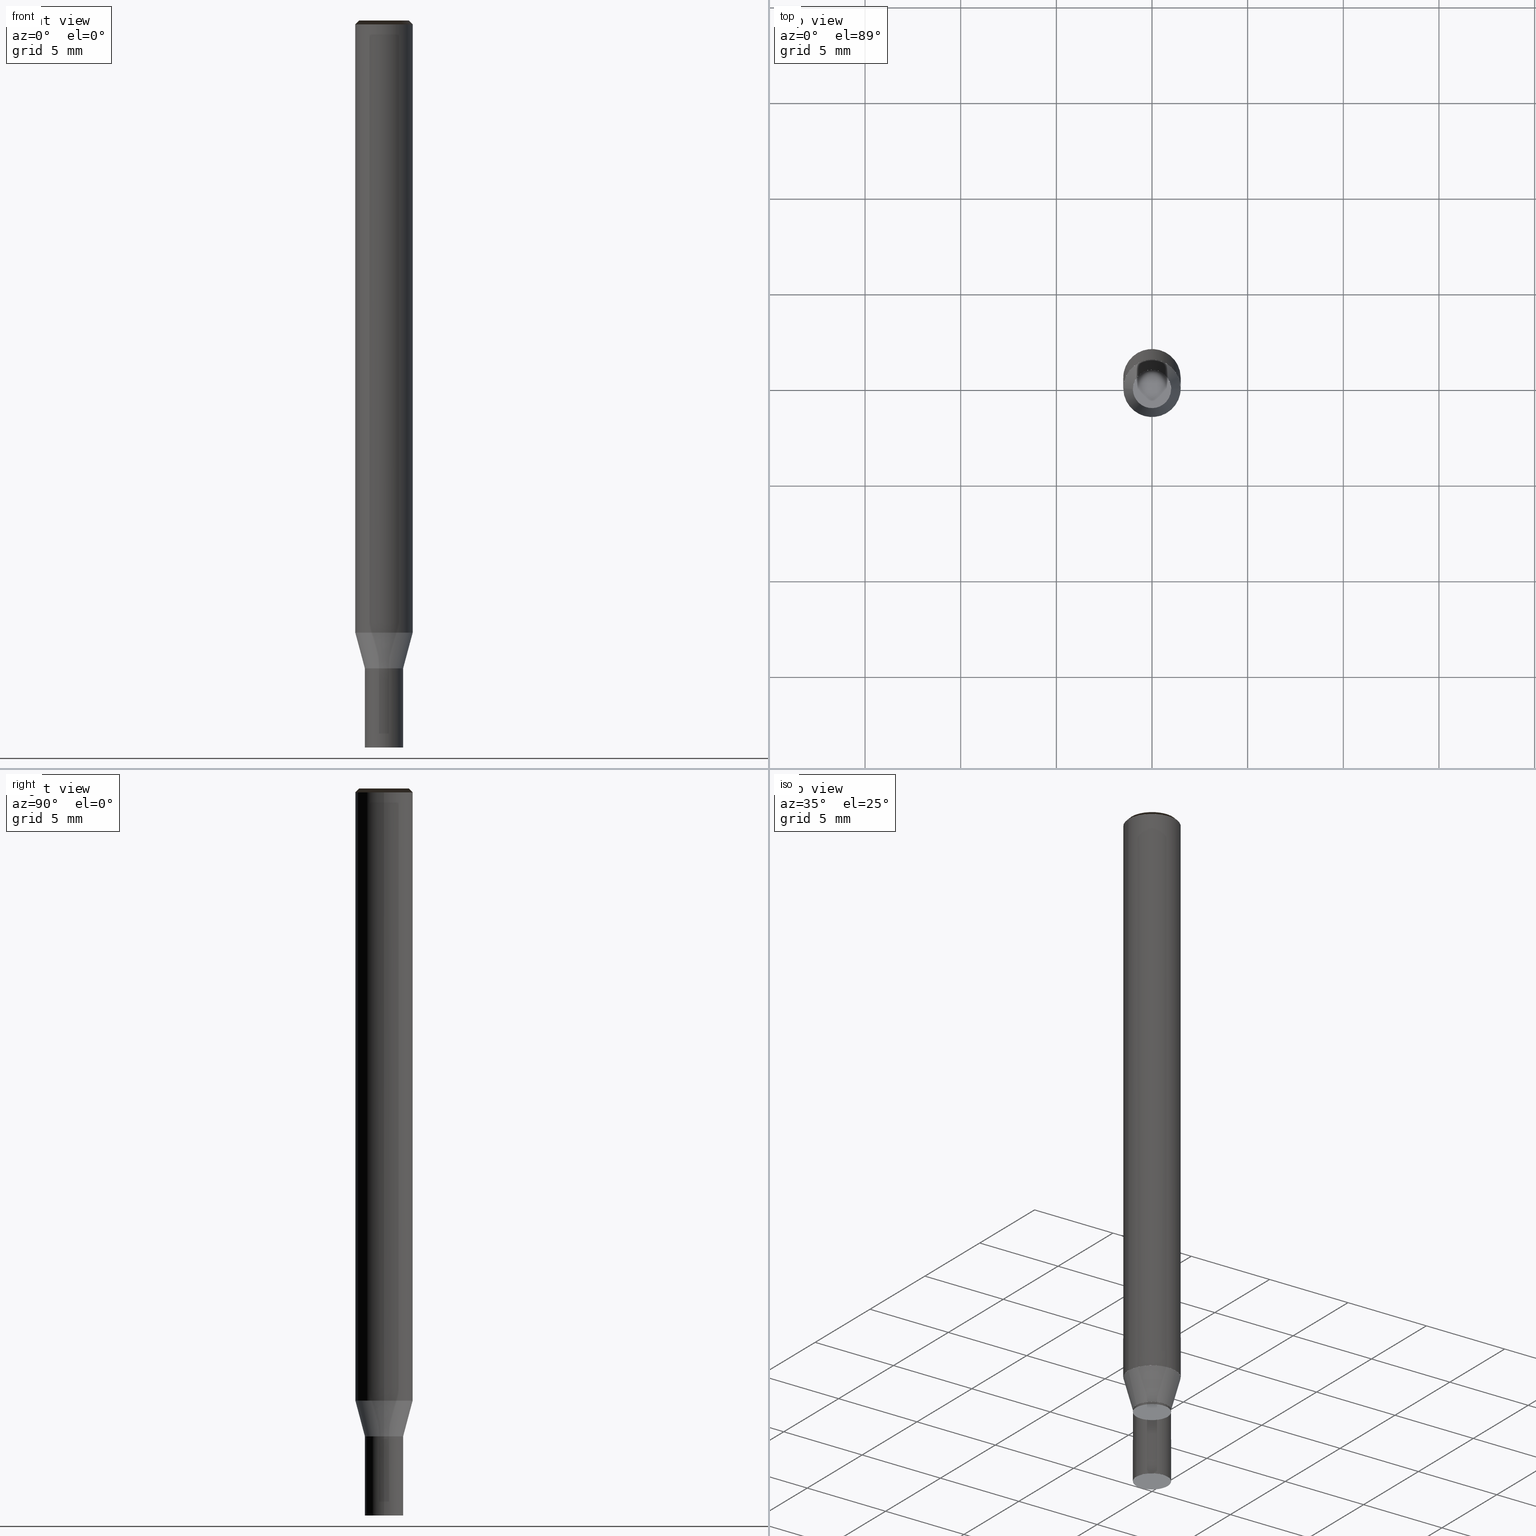
[diagram: canonical four-view strip — front | top / right | iso, engineering-drawing reading convention]
A machine part, canonical four-view strip (front | top / right | iso — engineering-drawing reading convention). The complete STEP part file that produces these views, byte-faithful:
ISO-10303-21;
HEADER;
/* Generated by ISBE GmbH (www.isbe.de) */
/* OPTION: using custom schema-name function */

FILE_DESCRIPTION(
/* description */ (''),
/* implementation_level */ '2;1');

FILE_NAME(
/*name*/ 'Drawing No  1070200   Issue  1',
/*time_stamp*/'2021-9-28T14:16:2',
/*author*/ ('ISBE GmbH'),
/*organization*/ ('ISBE GmbH'),
/*preprocessor_version*/ 'STEP IO v1.0',
/*originating_system*/ '',
/*authorisation*/ '');

FILE_SCHEMA (('AUTOMOTIVE_DESIGN'));
ENDSEC;

DATA;
#10=SHAPE_DEFINITION_REPRESENTATION(#11,#57);
#11=PRODUCT_DEFINITION_SHAPE('Document','',#13);
#12=PRODUCT_DEFINITION_CONTEXT('3D Mechanical Parts',#17,'design');
#13=PRODUCT_DEFINITION('A','First version',#14,#12);
#14=PRODUCT_DEFINITION_FORMATION_WITH_SPECIFIED_SOURCE('A','First version',#19,.MADE.);
#15=PRODUCT_RELATED_PRODUCT_CATEGORY('tool','tool',(#19));
#16=APPLICATION_PROTOCOL_DEFINITION('Draft International Standard', 'automotive_design',1999,#17);
#17=APPLICATION_CONTEXT('data for automotive mechanical design processes');
#18=PRODUCT_CONTEXT('3D Mechanical Parts',#17,'mechanical');
#19=PRODUCT('Document','Document','ISBE converted to STEP',(#18));
#20=(
LENGTH_UNIT()
NAMED_UNIT(*)
SI_UNIT(.MILLI.,.METRE.)
);
#21=(
NAMED_UNIT(*)
PLANE_ANGLE_UNIT()
SI_UNIT($,.RADIAN.)
);
#22=DIMENSIONAL_EXPONENTS(0.,0.,0.,0.,0.,0.,0.);
#23=PLANE_ANGLE_MEASURE_WITH_UNIT(PLANE_ANGLE_MEASURE(0.01745329252),#21);
#24=(
CONVERSION_BASED_UNIT('DEGREES',#23)
NAMED_UNIT(#22)
PLANE_ANGLE_UNIT()
);
#25=(
NAMED_UNIT(*)
SI_UNIT($,.STERADIAN.)
SOLID_ANGLE_UNIT()
);
#26=UNCERTAINTY_MEASURE_WITH_UNIT(LENGTH_MEASURE(0.001),#20, 'DISTANCE_ACCURACY_VALUE', 'Maximum model space distance between geometric entities at asserted connectivities');
#27=(
GEOMETRIC_REPRESENTATION_CONTEXT(3)
GLOBAL_UNCERTAINTY_ASSIGNED_CONTEXT((#26))
GLOBAL_UNIT_ASSIGNED_CONTEXT((#25,#24,#20))
REPRESENTATION_CONTEXT('ID1','3D')
);
#28=CARTESIAN_POINT('',(0.0,0.0,0.0));
#29=DIRECTION('',(1.0,0.0,0.0));
#30=DIRECTION('',(0.0,0.0,1.0));
#31=AXIS2_PLACEMENT_3D('',#28,#30,#29);
#32=CARTESIAN_POINT('',(0.0,0.0,0.0));
#33=DIRECTION('',(1.0,0.0,0.0));
#34=DIRECTION('',(0.0,0.0,1.0));
#35=AXIS2_PLACEMENT_3D('',#32,#34,#33);
#36=CARTESIAN_POINT('',(0.0,0.0,0.0));
#37=DIRECTION('',(1.0,0.0,0.0));
#38=DIRECTION('',(0.0,0.0,1.0));
#39=AXIS2_PLACEMENT_3D('',#36,#38,#37);
#40=CARTESIAN_POINT('',(0.0,0.0,0.0));
#41=DIRECTION('',(0.0,0.0,1.0));
#42=DIRECTION('',(1.0,0.0,0.0));
#43=AXIS2_PLACEMENT_3D('MCS',#40,#42,#41);
#44=CARTESIAN_POINT('',(0.0,0.0,32.0));
#45=DIRECTION('',(0.0,0.0,1.0));
#46=DIRECTION('',(1.0,0.0,0.0));
#47=AXIS2_PLACEMENT_3D('PCS',#44,#46,#45);
#48=CARTESIAN_POINT('',(0.0,0.0,-6.0));
#49=DIRECTION('',(0.0,0.0,1.0));
#50=DIRECTION('',(1.0,0.0,0.0));
#51=AXIS2_PLACEMENT_3D('CIP',#48,#50,#49);
#52=CARTESIAN_POINT('',(0.0,-1.0,-6.0));
#53=DIRECTION('',(0.0,0.0,1.0));
#54=DIRECTION('',(1.0,0.0,0.0));
#55=AXIS2_PLACEMENT_3D('CRP',#52,#54,#53);
#57=SHAPE_REPRESENTATION('Document',(#31,#35,#39,#43,#47,#51,#55),#27);
#58=DIRECTION('',(1.0,0.0,0.0));
#59=DIRECTION('',(0.0,0.0,1.0));
#60=CARTESIAN_POINT('',(-0.009999499987,-0.0001,-6.0));
#61=CARTESIAN_POINT('',(-0.00982159745,-0.017889364197,-6.0));
#62=CARTESIAN_POINT('',(-0.009603776282,-0.039670391888,-6.0));
#63=CARTESIAN_POINT('',(-0.009395476962,-0.060499282338,-6.0));
#64=CARTESIAN_POINT('',(-0.009189321609,-0.081113786832,-6.0));
#65=CARTESIAN_POINT('',(-0.008984003646,-0.101644556544,-6.0));
#66=CARTESIAN_POINT('',(-0.008779100356,-0.122133860989,-6.0));
#67=CARTESIAN_POINT('',(-0.008574432857,-0.14259958754,-6.0));
#68=CARTESIAN_POINT('',(-0.008369912304,-0.163050620211,-6.0));
#69=CARTESIAN_POINT('',(-0.008165489536,-0.183491874854,-6.0));
#70=CARTESIAN_POINT('',(-0.007961135133,-0.203926293336,-6.0));
#71=CARTESIAN_POINT('',(-0.007756830407,-0.224355744418,-6.0));
#72=CARTESIAN_POINT('',(-0.007552562914,-0.24478147235,-6.0));
#73=CARTESIAN_POINT('',(-0.007348324048,-0.265204337715,-6.0));
#74=CARTESIAN_POINT('',(-0.007144107667,-0.285624954769,-6.0));
#75=CARTESIAN_POINT('',(-0.006939909267,-0.306043773713,-6.0));
#76=CARTESIAN_POINT('',(-0.006735725474,-0.326461132044,-6.0));
#77=CARTESIAN_POINT('',(-0.006531553708,-0.346877287753,-6.0));
#78=CARTESIAN_POINT('',(-0.006327391963,-0.36729244144,-6.0));
#79=CARTESIAN_POINT('',(-0.006123238655,-0.387706751433,-6.0));
#80=CARTESIAN_POINT('',(-0.005919092518,-0.408120344371,-6.0));
#81=CARTESIAN_POINT('',(-0.005714952527,-0.428533322748,-6.0));
#82=CARTESIAN_POINT('',(-0.005510817844,-0.448945770414,-6.0));
#83=CARTESIAN_POINT('',(-0.005306687775,-0.469357756626,-6.0));
#84=CARTESIAN_POINT('',(-0.005102561744,-0.48976933909,-6.0));
#85=CARTESIAN_POINT('',(-0.004898439265,-0.510180566278,-6.0));
#86=CARTESIAN_POINT('',(-0.00469431993,-0.530591479197,-6.0));
#87=CARTESIAN_POINT('',(-0.004490203388,-0.551002112778,-6.0));
#88=CARTESIAN_POINT('',(-0.00428608934,-0.571412496961,-6.0));
#89=CARTESIAN_POINT('',(-0.004081977528,-0.591822657553,-6.0));
#90=CARTESIAN_POINT('',(-0.003877867729,-0.612232616919,-6.0));
#91=CARTESIAN_POINT('',(-0.003673759747,-0.632642394537,-6.0));
#92=CARTESIAN_POINT('',(-0.003469653412,-0.653052007452,-6.0));
#93=CARTESIAN_POINT('',(-0.003265548575,-0.673461470639,-6.0));
#94=CARTESIAN_POINT('',(-0.003061445103,-0.693870797313,-6.0));
#95=CARTESIAN_POINT('',(-0.002857342879,-0.714279999177,-6.0));
#96=CARTESIAN_POINT('',(-0.002653241799,-0.734689086634,-6.0));
#97=CARTESIAN_POINT('',(-0.002449141771,-0.755098068962,-6.0));
#98=CARTESIAN_POINT('',(-0.00224504271,-0.775506954461,-6.0));
#99=CARTESIAN_POINT('',(-0.002040944544,-0.795915750583,-6.0));
#100=CARTESIAN_POINT('',(-0.001836847204,-0.81632446403,-6.0));
#101=CARTESIAN_POINT('',(-0.001632750631,-0.836733100853,-6.0));
#102=CARTESIAN_POINT('',(-0.001428654769,-0.857141666527,-6.0));
#103=CARTESIAN_POINT('',(-0.001224559569,-0.877550166015,-6.0));
#104=CARTESIAN_POINT('',(-0.001020464986,-0.897958603831,-6.0));
#105=CARTESIAN_POINT('',(-0.000816370979,-0.918366984087,-6.0));
#106=CARTESIAN_POINT('',(-0.000612277509,-0.938775310538,-6.0));
#107=CARTESIAN_POINT('',(-0.000408184544,-0.959183586617,-6.0));
#108=CARTESIAN_POINT('',(-0.00020409205,-0.979591815474,-6.0));
#109=CARTESIAN_POINT('',(0.0,-1.0,-6.0));
#110=CARTESIAN_POINT('',(0.028507261854,-0.999593585424,-5.950617283951));
#111=CARTESIAN_POINT('',(0.056991352175,-0.998374672043,-5.901234567901));
#112=CARTESIAN_POINT('',(0.085429118263,-0.996344250625,-5.851851851852));
#113=CARTESIAN_POINT('',(0.113797445074,-0.993503971555,-5.802469135802));
#114=CARTESIAN_POINT('',(0.142073274004,-0.989856143494,-5.753086419753));
#115=CARTESIAN_POINT('',(0.170233621635,-0.985403731505,-5.703703703704));
#116=CARTESIAN_POINT('',(0.198255598417,-0.980150354638,-5.654320987654));
#117=CARTESIAN_POINT('',(0.226116427268,-0.974100282989,-5.604938271605));
#118=CARTESIAN_POINT('',(0.253793462095,-0.967258434234,-5.555555555556));
#119=CARTESIAN_POINT('',(0.281264206199,-0.959630369627,-5.506172839506));
#120=CARTESIAN_POINT('',(0.308506330556,-0.951222289482,-5.456790123457));
#121=CARTESIAN_POINT('',(0.335497691974,-0.94204102813,-5.407407407407));
#122=CARTESIAN_POINT('',(0.362216351089,-0.932094048369,-5.358024691358));
#123=CARTESIAN_POINT('',(0.388640590194,-0.921389435393,-5.308641975309));
#124=CARTESIAN_POINT('',(0.414748930898,-0.909935890225,-5.259259259259));
#125=CARTESIAN_POINT('',(0.44052015158,-0.897742722639,-5.20987654321));
#126=CARTESIAN_POINT('',(0.465933304642,-0.884819843598,-5.16049382716));
#127=CARTESIAN_POINT('',(0.490967733531,-0.871177757195,-5.111111111111));
#128=CARTESIAN_POINT('',(0.515603089534,-0.856827552115,-5.061728395062));
#129=CARTESIAN_POINT('',(0.539819348315,-0.841780892623,-5.012345679012));
#130=CARTESIAN_POINT('',(0.563596826194,-0.826050009082,-4.962962962963));
#131=CARTESIAN_POINT('',(0.586916196142,-0.809647688014,-4.913580246914));
#132=CARTESIAN_POINT('',(0.609758503497,-0.792587261702,-4.864197530864));
#133=CARTESIAN_POINT('',(0.632105181366,-0.77488259736,-4.814814814815));
#134=CARTESIAN_POINT('',(0.653938065716,-0.756548085853,-4.765432098765));
#135=CARTESIAN_POINT('',(0.675239410143,-0.737598630008,-4.716049382716));
#136=CARTESIAN_POINT('',(0.695991900294,-0.718049632495,-4.666666666667));
#137=CARTESIAN_POINT('',(0.716178667939,-0.697916983308,-4.617283950617));
#138=CARTESIAN_POINT('',(0.735783304685,-0.677217046852,-4.567901234568));
#139=CARTESIAN_POINT('',(0.754789875312,-0.655966648638,-4.518518518519));
#140=CARTESIAN_POINT('',(0.773182930726,-0.634183061611,-4.469135802469));
#141=CARTESIAN_POINT('',(0.790947520514,-0.611883992104,-4.41975308642));
#142=CARTESIAN_POINT('',(0.808069205101,-0.58908756545,-4.37037037037));
#143=CARTESIAN_POINT('',(0.824534067481,-0.565812311251,-4.320987654321));
#144=CARTESIAN_POINT('',(0.840328724535,-0.542077148311,-4.271604938272));
#145=CARTESIAN_POINT('',(0.855440337905,-0.517901369263,-4.222222222222));
#146=CARTESIAN_POINT('',(0.869856624431,-0.493304624885,-4.172839506173));
#147=CARTESIAN_POINT('',(0.883565866136,-0.468306908127,-4.123456790123));
#148=CARTESIAN_POINT('',(0.896556919748,-0.442928537862,-4.074074074074));
#149=CARTESIAN_POINT('',(0.908819225759,-0.41719014237,-4.024691358025));
#150=CARTESIAN_POINT('',(0.920342817011,-0.391112642568,-3.975308641975));
#151=CARTESIAN_POINT('',(0.931118326792,-0.364717235009,-3.925925925926));
#152=CARTESIAN_POINT('',(0.941136996453,-0.33802537465,-3.876543209877));
#153=CARTESIAN_POINT('',(0.950390682529,-0.311058757412,-3.827160493827));
#154=CARTESIAN_POINT('',(0.958871863352,-0.283839302548,-3.777777777778));
#155=CARTESIAN_POINT('',(0.966573645173,-0.256389134825,-3.728395061728));
#156=CARTESIAN_POINT('',(0.973489767758,-0.22873056654,-3.679012345679));
#157=CARTESIAN_POINT('',(0.979614609482,-0.200886079382,-3.62962962963));
#158=CARTESIAN_POINT('',(0.984943191894,-0.172878306162,-3.58024691358));
#159=CARTESIAN_POINT('',(0.989471183767,-0.144730012416,-3.530864197531));
#160=CARTESIAN_POINT('',(0.993194904618,-0.116464077896,-3.481481481481));
#161=CARTESIAN_POINT('',(0.996111327698,-0.088103477979,-3.432098765432));
#162=CARTESIAN_POINT('',(0.998218082452,-0.059671264987,-3.382716049383));
#163=CARTESIAN_POINT('',(0.99951345645,-0.031190549451,-3.333333333333));
#164=CARTESIAN_POINT('',(0.999996396774,-0.002684481327,-3.283950617284));
#165=CARTESIAN_POINT('',(0.999666510874,0.025823768821,-3.234567901235));
#166=CARTESIAN_POINT('',(0.998524066894,0.054311028658,-3.185185185185));
#167=CARTESIAN_POINT('',(0.996569993443,0.082754142907,-3.135802469136));
#168=CARTESIAN_POINT('',(0.993805878851,0.111129992176,-3.086419753086));
#169=CARTESIAN_POINT('',(0.99023396987,0.139415511748,-3.037037037037));
#170=CARTESIAN_POINT('',(0.985857169851,0.167587710328,-2.987654320988));
#171=CARTESIAN_POINT('',(0.980679036386,0.195623688732,-2.938271604938));
#172=CARTESIAN_POINT('',(0.974703778412,0.223500658499,-2.888888888889));
#173=CARTESIAN_POINT('',(0.967936252793,0.251195960415,-2.83950617284));
#174=CARTESIAN_POINT('',(0.960381960371,0.278687082932,-2.79012345679));
#175=CARTESIAN_POINT('',(0.952047041496,0.305951680464,-2.740740740741));
#176=CARTESIAN_POINT('',(0.942938271032,0.332967591551,-2.691358024691));
#177=CARTESIAN_POINT('',(0.933063052853,0.359712856873,-2.641975308642));
#178=CARTESIAN_POINT('',(0.922429413826,0.386165737099,-2.592592592593));
#179=CARTESIAN_POINT('',(0.91104599728,0.412304730557,-2.543209876543));
#180=CARTESIAN_POINT('',(0.89892205599,0.438108590711,-2.493827160494));
#181=CARTESIAN_POINT('',(0.886067444648,0.46355634343,-2.444444444444));
#182=CARTESIAN_POINT('',(0.872492611857,0.488627304041,-2.395061728395));
#183=CARTESIAN_POINT('',(0.858208591637,0.513301094135,-2.345679012346));
#184=CARTESIAN_POINT('',(0.843226994456,0.537557658136,-2.296296296296));
#185=CARTESIAN_POINT('',(0.827559997793,0.561377279602,-2.246913580247));
#186=CARTESIAN_POINT('',(0.811220336239,0.58474059725,-2.197530864198));
#187=CARTESIAN_POINT('',(0.794221291148,0.607628620695,-2.148148148148));
#188=CARTESIAN_POINT('',(0.776576679838,0.630022745884,-2.098765432099));
#189=CARTESIAN_POINT('',(0.758300844365,0.651904770219,-2.049382716049));
#190=CARTESIAN_POINT('',(0.739408639861,0.673256907353,-2.0));
#191=CARTESIAN_POINT('',(0.005086352534,-0.008609821014,-6.0));
#192=CARTESIAN_POINT('',(0.020403442578,0.000438929201,-6.0));
#193=CARTESIAN_POINT('',(0.039157455294,0.011518081712,-6.0));
#194=CARTESIAN_POINT('',(0.057091653897,0.022112919439,-6.0));
#195=CARTESIAN_POINT('',(0.074841260798,0.032598707459,-6.0));
#196=CARTESIAN_POINT('',(0.092518769947,0.043041902887,-6.0));
#197=CARTESIAN_POINT('',(0.110160576457,0.053464006564,-6.0));
#198=CARTESIAN_POINT('',(0.127782081807,0.063874117093,-6.0));
#199=CARTESIAN_POINT('',(0.145390935358,0.074276753423,-6.0));
#200=CARTESIAN_POINT('',(0.16299136978,0.084674416055,-6.0));
#201=CARTESIAN_POINT('',(0.180585918095,0.0950686014,-6.0));
#202=CARTESIAN_POINT('',(0.198176189355,0.105460260024,-6.0));
#203=CARTESIAN_POINT('',(0.215763254888,0.115850024828,-6.0));
#204=CARTESIAN_POINT('',(0.233347855679,0.126238333556,-6.0));
#205=CARTESIAN_POINT('',(0.250930520618,0.136625498658,-6.0));
#206=CARTESIAN_POINT('',(0.268511637339,0.147011749131,-6.0));
#207=CARTESIAN_POINT('',(0.286091496435,0.157397256648,-6.0));
#208=CARTESIAN_POINT('',(0.303670320044,0.167782152439,-6.0));
#209=CARTESIAN_POINT('',(0.321248280886,0.17816653854,-6.0));
#210=CARTESIAN_POINT('',(0.338825515288,0.188550495488,-6.0));
#211=CARTESIAN_POINT('',(0.356402132285,0.198934087697,-6.0));
#212=CARTESIAN_POINT('',(0.373978220131,0.209317367304,-6.0));
#213=CARTESIAN_POINT('',(0.391553851022,0.219700376959,-6.0));
#214=CARTESIAN_POINT('',(0.409129084588,0.23008315189,-6.0));
#215=CARTESIAN_POINT('',(0.426703970519,0.240465721451,-6.0));
#216=CARTESIAN_POINT('',(0.444278550546,0.250848110296,-6.0));
#217=CARTESIAN_POINT('',(0.461852859981,0.261230339286,-6.0));
#218=CARTESIAN_POINT('',(0.479426928899,0.271612426187,-6.0));
#219=CARTESIAN_POINT('',(0.497000783078,0.281994386229,-6.0));
#220=CARTESIAN_POINT('',(0.51457444474,0.292376232539,-6.0));
#221=CARTESIAN_POINT('',(0.532147933141,0.302757976493,-6.0));
#222=CARTESIAN_POINT('',(0.549721265054,0.313139628,-6.0));
#223=CARTESIAN_POINT('',(0.567294455152,0.323521195729,-6.0));
#224=CARTESIAN_POINT('',(0.584867516331,0.333902687296,-6.0));
#225=CARTESIAN_POINT('',(0.602440459969,0.344284109425,-6.0));
#226=CARTESIAN_POINT('',(0.620013296142,0.354665468068,-6.0));
#227=CARTESIAN_POINT('',(0.637586033808,0.365046768517,-6.0));
#228=CARTESIAN_POINT('',(0.655158680955,0.37542801549,-6.0));
#229=CARTESIAN_POINT('',(0.67273124473,0.385809213211,-6.0));
#230=CARTESIAN_POINT('',(0.690303731549,0.396190365469,-6.0));
#231=CARTESIAN_POINT('',(0.707876147183,0.406571475673,-6.0));
#232=CARTESIAN_POINT('',(0.725448496842,0.416952546902,-6.0));
#233=CARTESIAN_POINT('',(0.743020785239,0.42733358194,-6.0));
#234=CARTESIAN_POINT('',(0.760593016649,0.437714583312,-6.0));
#235=CARTESIAN_POINT('',(0.778165194958,0.448095553314,-6.0));
#236=CARTESIAN_POINT('',(0.795737323706,0.458476494037,-6.0));
#237=CARTESIAN_POINT('',(0.813309406126,0.468857407392,-6.0));
#238=CARTESIAN_POINT('',(0.830881445175,0.479238295124,-6.0));
#239=CARTESIAN_POINT('',(0.848453443565,0.489619158837,-6.0));
#240=CARTESIAN_POINT('',(0.866025403784,0.5,-6.0));
#241=CARTESIAN_POINT('',(0.85141980751,0.52448480567,-5.950617283951));
#242=CARTESIAN_POINT('',(0.836122152397,0.548543294801,-5.901234567901));
#243=CARTESIAN_POINT('',(0.820144872824,0.572155911951,-5.851851851852));
#244=CARTESIAN_POINT('',(0.80350095559,0.595303464097,-5.802469135802));
#245=CARTESIAN_POINT('',(0.786203929356,0.617967136234,-5.753086419753));
#246=CARTESIAN_POINT('',(0.76826785365,0.640128506667,-5.703703703704));
#247=CARTESIAN_POINT('',(0.749707307436,0.66176956199,-5.654320987654));
#248=CARTESIAN_POINT('',(0.730537377268,0.682872711722,-5.604938271605));
#249=CARTESIAN_POINT('',(0.710773645024,0.703420802606,-5.555555555556));
#250=CARTESIAN_POINT('',(0.690432175241,0.723397132557,-5.506172839506));
#251=CARTESIAN_POINT('',(0.669529502059,0.742785464231,-5.456790123457));
#252=CARTESIAN_POINT('',(0.64808261578,0.761570038226,-5.407407407407));
#253=CARTESIAN_POINT('',(0.626108949059,0.779735585893,-5.358024691358));
#254=CARTESIAN_POINT('',(0.603626362732,0.797267341746,-5.308641975309));
#255=CARTESIAN_POINT('',(0.580653131301,0.814151055462,-5.259259259259));
#256=CARTESIAN_POINT('',(0.557207928078,0.830373003467,-5.20987654321));
#257=CARTESIAN_POINT('',(0.533309810008,0.845920000088,-5.16049382716));
#258=CARTESIAN_POINT('',(0.508978202178,0.860779408274,-5.111111111111));
#259=CARTESIAN_POINT('',(0.484232882027,0.874939149863,-5.061728395062));
#260=CARTESIAN_POINT('',(0.459093963274,0.888387715407,-5.012345679012));
#261=CARTESIAN_POINT('',(0.433581879565,0.901114173517,-4.962962962963));
#262=CARTESIAN_POINT('',(0.407717367864,0.913108179759,-4.913580246914));
#263=CARTESIAN_POINT('',(0.381521451601,0.924359985053,-4.864197530864));
#264=CARTESIAN_POINT('',(0.355015423581,0.934860443606,-4.814814814815));
#265=CARTESIAN_POINT('',(0.328220828675,0.944601020338,-4.765432098765));
#266=CARTESIAN_POINT('',(0.301159446312,0.953573797824,-4.716049382716));
#267=CARTESIAN_POINT('',(0.273853272771,0.96177148273,-4.666666666667));
#268=CARTESIAN_POINT('',(0.246324503308,0.969187411737,-4.617283950617));
#269=CARTESIAN_POINT('',(0.218595514107,0.975815556964,-4.567901234568));
#270=CARTESIAN_POINT('',(0.1906888441,0.981650530859,-4.518518518519));
#271=CARTESIAN_POINT('',(0.162627176642,0.986687590587,-4.469135802469));
#272=CARTESIAN_POINT('',(0.134433321074,0.990922641877,-4.41975308642));
#273=CARTESIAN_POINT('',(0.106130194183,0.994352242358,-4.37037037037));
#274=CARTESIAN_POINT('',(0.077740801577,0.99697360435,-4.320987654321));
#275=CARTESIAN_POINT('',(0.049288218981,0.998784597133,-4.271604938272));
#276=CARTESIAN_POINT('',(0.020795573484,0.999783748679,-4.222222222222));
#277=CARTESIAN_POINT('',(-0.007713975261,0.99997024685,-4.172839506173));
#278=CARTESIAN_POINT('',(-0.036217253863,0.999343940054,-4.123456790123));
#279=CARTESIAN_POINT('',(-0.064691094024,0.997905337371,-4.074074074074));
#280=CARTESIAN_POINT('',(-0.093112351379,0.99565560814,-4.024691358025));
#281=CARTESIAN_POINT('',(-0.1214579243,0.992596581006,-3.975308641975));
#282=CARTESIAN_POINT('',(-0.14970477268,0.988730742435,-3.925925925926));
#283=CARTESIAN_POINT('',(-0.177829936656,0.984061234695,-3.876543209877));
#284=CARTESIAN_POINT('',(-0.205810555276,0.978591853296,-3.827160493827));
#285=CARTESIAN_POINT('',(-0.233623885077,0.972327043911,-3.777777777778));
#286=CARTESIAN_POINT('',(-0.261247318573,0.965271898761,-3.728395061728));
#287=CARTESIAN_POINT('',(-0.288658402634,0.957432152473,-3.679012345679));
#288=CARTESIAN_POINT('',(-0.31583485673,0.948814177421,-3.62962962963));
#289=CARTESIAN_POINT('',(-0.342754591047,0.939424978546,-3.58024691358));
#290=CARTESIAN_POINT('',(-0.369395724442,0.929272187663,-3.530864197531));
#291=CARTESIAN_POINT('',(-0.395736602223,0.918364057257,-3.481481481481));
#292=CARTESIAN_POINT('',(-0.421755813757,0.906709453773,-3.432098765432));
#293=CARTESIAN_POINT('',(-0.447432209872,0.894317850414,-3.382716049383));
#294=CARTESIAN_POINT('',(-0.472744920043,0.881199319436,-3.333333333333));
#295=CARTESIAN_POINT('',(-0.497673369361,0.867364523962,-3.283950617284));
#296=CARTESIAN_POINT('',(-0.522197295258,0.852824709319,-3.234567901235));
#297=CARTESIAN_POINT('',(-0.54629676397,0.837591693891,-3.185185185185));
#298=CARTESIAN_POINT('',(-0.569952186747,0.821677859518,-3.135802469136));
#299=CARTESIAN_POINT('',(-0.593144335772,0.805096141427,-3.086419753086));
#300=CARTESIAN_POINT('',(-0.61585435979,0.787860017723,-3.037037037037));
#301=CARTESIAN_POINT('',(-0.638063799432,0.76998349843,-2.987654320988));
#302=CARTESIAN_POINT('',(-0.659754602217,0.751481114103,-2.938271604938));
#303=CARTESIAN_POINT('',(-0.680909137228,0.73236790402,-2.888888888889));
#304=CARTESIAN_POINT('',(-0.701510209444,0.712659403955,-2.83950617284));
#305=CARTESIAN_POINT('',(-0.721541073711,0.692371633552,-2.79012345679));
#306=CARTESIAN_POINT('',(-0.74098544836,0.671521083302,-2.740740740741));
#307=CARTESIAN_POINT('',(-0.759827528436,0.650124701139,-2.691358024691));
#308=CARTESIAN_POINT('',(-0.778051998547,0.628199878667,-2.641975308642));
#309=CARTESIAN_POINT('',(-0.795644045312,0.605764437021,-2.592592592593));
#310=CARTESIAN_POINT('',(-0.812589369403,0.582836612382,-2.543209876543));
#311=CARTESIAN_POINT('',(-0.828874197167,0.559435041154,-2.493827160494));
#312=CARTESIAN_POINT('',(-0.84448529182,0.535578744816,-2.444444444444));
#313=CARTESIAN_POINT('',(-0.859409964211,0.511287114462,-2.395061728395));
#314=CARTESIAN_POINT('',(-0.87363608313,0.486579895037,-2.345679012346));
#315=CARTESIAN_POINT('',(-0.887152085173,0.461477169288,-2.296296296296));
#316=CARTESIAN_POINT('',(-0.899946984139,0.435999341444,-2.246913580247));
#317=CARTESIAN_POINT('',(-0.912010379962,0.410167120624,-2.197530864198));
#318=CARTESIAN_POINT('',(-0.923332467162,0.384001504013,-2.148148148148));
#319=CARTESIAN_POINT('',(-0.933904042817,0.357523759785,-2.098765432099));
#320=CARTESIAN_POINT('',(-0.943716514041,0.330755409822,-2.049382716049));
#321=CARTESIAN_POINT('',(-0.952761904972,0.303718212221,-2.0));
#322=CARTESIAN_POINT('',(0.004913147453,0.008709821014,-6.0));
#323=CARTESIAN_POINT('',(-0.010581845127,0.017450434996,-6.0));
#324=CARTESIAN_POINT('',(-0.029553679012,0.028152310177,-6.0));
#325=CARTESIAN_POINT('',(-0.047696176934,0.038386362899,-6.0));
#326=CARTESIAN_POINT('',(-0.065651939189,0.048515079373,-6.0));
#327=CARTESIAN_POINT('',(-0.083534766301,0.058602653657,-6.0));
#328=CARTESIAN_POINT('',(-0.1013814761,0.068669854425,-6.0));
#329=CARTESIAN_POINT('',(-0.11920764895,0.078725470447,-6.0));
#330=CARTESIAN_POINT('',(-0.137021023054,0.088773866788,-6.0));
#331=CARTESIAN_POINT('',(-0.154825880244,0.0988174588,-6.0));
#332=CARTESIAN_POINT('',(-0.172624782962,0.108857691936,-6.0));
#333=CARTESIAN_POINT('',(-0.190419358948,0.118895484395,-6.0));
#334=CARTESIAN_POINT('',(-0.208210691974,0.128931447522,-6.0));
#335=CARTESIAN_POINT('',(-0.22599953163,0.138966004158,-6.0));
#336=CARTESIAN_POINT('',(-0.243786412952,0.148999456111,-6.0));
#337=CARTESIAN_POINT('',(-0.261571728072,0.159032024582,-6.0));
#338=CARTESIAN_POINT('',(-0.279355770961,0.169063875396,-6.0));
#339=CARTESIAN_POINT('',(-0.297138766336,0.179095135314,-6.0));
#340=CARTESIAN_POINT('',(-0.314920888923,0.1891259029,-6.0));
#341=CARTESIAN_POINT('',(-0.332702276632,0.199156255946,-6.0));
#342=CARTESIAN_POINT('',(-0.350483039767,0.209186256673,-6.0));
#343=CARTESIAN_POINT('',(-0.368263267604,0.219215955444,-6.0));
#344=CARTESIAN_POINT('',(-0.386043033178,0.229245393455,-6.0));
#345=CARTESIAN_POINT('',(-0.403822396814,0.239274604736,-6.0));
#346=CARTESIAN_POINT('',(-0.421601408775,0.249303617639,-6.0));
#347=CARTESIAN_POINT('',(-0.439380111281,0.259332455981,-6.0));
#348=CARTESIAN_POINT('',(-0.457158540051,0.269361139911,-6.0));
#349=CARTESIAN_POINT('',(-0.474936725511,0.279389686591,-6.0));
#350=CARTESIAN_POINT('',(-0.492714693738,0.289418110732,-6.0));
#351=CARTESIAN_POINT('',(-0.510492467212,0.299446425014,-6.0));
#352=CARTESIAN_POINT('',(-0.528270065412,0.309474640425,-6.0));
#353=CARTESIAN_POINT('',(-0.546047505307,0.319502766537,-6.0));
#354=CARTESIAN_POINT('',(-0.56382480174,0.329530811724,-6.0));
#355=CARTESIAN_POINT('',(-0.581601967756,0.339558783343,-6.0));
#356=CARTESIAN_POINT('',(-0.599379014866,0.349586687888,-6.0));
#357=CARTESIAN_POINT('',(-0.617155953263,0.359614531109,-6.0));
#358=CARTESIAN_POINT('',(-0.634932792009,0.369642318117,-6.0));
#359=CARTESIAN_POINT('',(-0.652709539184,0.379670053472,-6.0));
#360=CARTESIAN_POINT('',(-0.67048620202,0.38969774125,-6.0));
#361=CARTESIAN_POINT('',(-0.688262787005,0.399725385114,-6.0));
#362=CARTESIAN_POINT('',(-0.706039299978,0.409752988357,-6.0));
#363=CARTESIAN_POINT('',(-0.723815746211,0.419780553951,-6.0));
#364=CARTESIAN_POINT('',(-0.74159213047,0.429808084587,-6.0));
#365=CARTESIAN_POINT('',(-0.75936845708,0.439835582703,-6.0));
#366=CARTESIAN_POINT('',(-0.777144729972,0.449863050517,-6.0));
#367=CARTESIAN_POINT('',(-0.794920952727,0.45989049005,-6.0));
#368=CARTESIAN_POINT('',(-0.812697128617,0.469917903146,-6.0));
#369=CARTESIAN_POINT('',(-0.830473260632,0.479945291493,-6.0));
#370=CARTESIAN_POINT('',(-0.848249351515,0.489972656637,-6.0));
#371=CARTESIAN_POINT('',(-0.866025403784,0.5,-6.0));
#372=CARTESIAN_POINT('',(-0.879927069365,0.475108779754,-5.950617283951));
#373=CARTESIAN_POINT('',(-0.893113504572,0.449831377242,-5.901234567901));
#374=CARTESIAN_POINT('',(-0.905573991087,0.424188338673,-5.851851851852));
#375=CARTESIAN_POINT('',(-0.917298400664,0.398200507457,-5.802469135802));
#376=CARTESIAN_POINT('',(-0.92827720336,0.371889007261,-5.753086419753));
#377=CARTESIAN_POINT('',(-0.938501475285,0.345275224838,-5.703703703704));
#378=CARTESIAN_POINT('',(-0.947962905853,0.318380792648,-5.654320987654));
#379=CARTESIAN_POINT('',(-0.956653804536,0.291227571268,-5.604938271605));
#380=CARTESIAN_POINT('',(-0.964567107119,0.263837631628,-5.555555555556));
#381=CARTESIAN_POINT('',(-0.97169638144,0.23623323707,-5.506172839506));
#382=CARTESIAN_POINT('',(-0.978035832615,0.208436825251,-5.456790123457));
#383=CARTESIAN_POINT('',(-0.983580307755,0.180470989904,-5.407407407407));
#384=CARTESIAN_POINT('',(-0.988325300148,0.152358462475,-5.358024691358));
#385=CARTESIAN_POINT('',(-0.992266952926,0.124122093647,-5.308641975309));
#386=CARTESIAN_POINT('',(-0.995402062199,0.095784834763,-5.259259259259));
#387=CARTESIAN_POINT('',(-0.997728079658,0.067369719172,-5.20987654321));
#388=CARTESIAN_POINT('',(-0.99924311465,0.03889984351,-5.16049382716));
#389=CARTESIAN_POINT('',(-0.999945935708,0.010398348921,-5.111111111111));
#390=CARTESIAN_POINT('',(-0.999835971561,-0.018111597748,-5.061728395062));
#391=CARTESIAN_POINT('',(-0.998913311589,-0.046606822784,-5.012345679012));
#392=CARTESIAN_POINT('',(-0.997178705758,-0.075064164435,-4.962962962963));
#393=CARTESIAN_POINT('',(-0.994633564006,-0.103460491745,-4.913580246914));
#394=CARTESIAN_POINT('',(-0.991279955099,-0.131772723351,-4.864197530864));
#395=CARTESIAN_POINT('',(-0.987120604947,-0.159977846247,-4.814814814815));
#396=CARTESIAN_POINT('',(-0.982158894391,-0.188052934485,-4.765432098765));
#397=CARTESIAN_POINT('',(-0.976398856455,-0.215975167816,-4.716049382716));
#398=CARTESIAN_POINT('',(-0.969845173065,-0.243721850235,-4.666666666667));
#399=CARTESIAN_POINT('',(-0.962503171247,-0.27127042843,-4.617283950617));
#400=CARTESIAN_POINT('',(-0.954378818792,-0.298598510112,-4.567901234568));
#401=CARTESIAN_POINT('',(-0.945478719412,-0.325683882221,-4.518518518519));
#402=CARTESIAN_POINT('',(-0.935810107368,-0.352504528976,-4.469135802469));
#403=CARTESIAN_POINT('',(-0.925380841588,-0.379038649774,-4.41975308642));
#404=CARTESIAN_POINT('',(-0.914199399284,-0.405264676908,-4.37037037037));
#405=CARTESIAN_POINT('',(-0.902274869058,-0.431161293099,-4.320987654321));
#406=CARTESIAN_POINT('',(-0.889616943516,-0.456707448821,-4.271604938272));
#407=CARTESIAN_POINT('',(-0.876235911389,-0.481882379416,-4.222222222222));
#408=CARTESIAN_POINT('',(-0.86214264917,-0.506665621965,-4.172839506173));
#409=CARTESIAN_POINT('',(-0.847348612273,-0.531037031927,-4.123456790123));
#410=CARTESIAN_POINT('',(-0.831865825723,-0.554976799509,-4.074074074074));
#411=CARTESIAN_POINT('',(-0.81570687438,-0.57846546577,-4.024691358025));
#412=CARTESIAN_POINT('',(-0.798884892711,-0.601483938438,-3.975308641975));
#413=CARTESIAN_POINT('',(-0.781413554112,-0.624013507426,-3.925925925926));
#414=CARTESIAN_POINT('',(-0.763307059797,-0.646035860045,-3.876543209877));
#415=CARTESIAN_POINT('',(-0.744580127253,-0.667533095884,-3.827160493827));
#416=CARTESIAN_POINT('',(-0.725247978276,-0.688487741363,-3.777777777778));
#417=CARTESIAN_POINT('',(-0.7053263266,-0.708882763936,-3.728395061728));
#418=CARTESIAN_POINT('',(-0.684831365125,-0.728701585933,-3.679012345679));
#419=CARTESIAN_POINT('',(-0.663779752752,-0.747928098039,-3.62962962963));
#420=CARTESIAN_POINT('',(-0.642188600847,-0.766546672384,-3.58024691358));
#421=CARTESIAN_POINT('',(-0.620075459326,-0.784542175247,-3.530864197531));
#422=CARTESIAN_POINT('',(-0.597458302396,-0.801899979361,-3.481481481481));
#423=CARTESIAN_POINT('',(-0.574355513941,-0.818605975794,-3.432098765432));
#424=CARTESIAN_POINT('',(-0.550785872581,-0.834646585427,-3.382716049383));
#425=CARTESIAN_POINT('',(-0.526768536408,-0.850008769985,-3.333333333333));
#426=CARTESIAN_POINT('',(-0.502323027412,-0.864680042635,-3.283950617284));
#427=CARTESIAN_POINT('',(-0.477469215617,-0.87864847814,-3.234567901235));
#428=CARTESIAN_POINT('',(-0.452227302924,-0.891902722549,-3.185185185185));
#429=CARTESIAN_POINT('',(-0.426617806696,-0.904432002425,-3.135802469136));
#430=CARTESIAN_POINT('',(-0.400661543079,-0.916226133603,-3.086419753086));
#431=CARTESIAN_POINT('',(-0.374379610079,-0.927275529472,-3.037037037037));
#432=CARTESIAN_POINT('',(-0.347793370419,-0.937571208758,-2.987654320988));
#433=CARTESIAN_POINT('',(-0.320924434169,-0.947104802835,-2.938271604938));
#434=CARTESIAN_POINT('',(-0.293794641184,-0.955868562519,-2.888888888889));
#435=CARTESIAN_POINT('',(-0.266426043349,-0.96385536437,-2.83950617284));
#436=CARTESIAN_POINT('',(-0.23884088666,-0.971058716484,-2.79012345679));
#437=CARTESIAN_POINT('',(-0.211061593136,-0.977472763765,-2.740740740741));
#438=CARTESIAN_POINT('',(-0.183110742596,-0.98309229269,-2.691358024691));
#439=CARTESIAN_POINT('',(-0.155011054307,-0.98791273554,-2.641975308642));
#440=CARTESIAN_POINT('',(-0.126785368514,-0.991930174121,-2.592592592593));
#441=CARTESIAN_POINT('',(-0.098456627877,-0.995141342939,-2.543209876543));
#442=CARTESIAN_POINT('',(-0.070047858823,-0.997543631865,-2.493827160494));
#443=CARTESIAN_POINT('',(-0.041582152828,-0.999135088247,-2.444444444444));
#444=CARTESIAN_POINT('',(-0.013082647646,-0.999914418503,-2.395061728395));
#445=CARTESIAN_POINT('',(0.015427491492,-0.999880989171,-2.345679012346));
#446=CARTESIAN_POINT('',(0.043925090716,-0.999034827424,-2.296296296296));
#447=CARTESIAN_POINT('',(0.072386986346,-0.997376621045,-2.246913580247));
#448=CARTESIAN_POINT('',(0.100790043723,-0.994907717875,-2.197530864198));
#449=CARTESIAN_POINT('',(0.129111176015,-0.991630124708,-2.148148148148));
#450=CARTESIAN_POINT('',(0.157327362978,-0.987546505669,-2.098765432099));
#451=CARTESIAN_POINT('',(0.185415669675,-0.982660180041,-2.049382716049));
#452=CARTESIAN_POINT('',(0.213353265111,-0.976975119574,-2.0));
#453=CARTESIAN_POINT('',(0.0,0.0,-6.0));
#454=CARTESIAN_POINT('',(1.0,0.0,-6.0));
#455=CARTESIAN_POINT('',(1.0,1.0,-6.0));
#456=CARTESIAN_POINT('',(0.0,1.0,-6.0));
#457=CARTESIAN_POINT('',(-1.0,1.0,-6.0));
#458=CARTESIAN_POINT('',(-1.0,0.0,-6.0));
#459=CARTESIAN_POINT('',(1.0,0.0,-2.0));
#460=CARTESIAN_POINT('',(1.0,1.0,-2.0));
#461=CARTESIAN_POINT('',(0.0,1.0,-2.0));
#462=CARTESIAN_POINT('',(-1.0,1.0,-2.0));
#463=CARTESIAN_POINT('',(-1.0,0.0,-2.0));
#464=CARTESIAN_POINT('',(0.0,0.0,-2.0));
#465=CARTESIAN_POINT('',(-1.0,-1.0,-6.0));
#466=CARTESIAN_POINT('',(1.0,-1.0,-6.0));
#467=CARTESIAN_POINT('',(-1.0,-1.0,-2.0));
#468=CARTESIAN_POINT('',(0.0,-1.0,-2.0));
#469=CARTESIAN_POINT('',(1.0,-1.0,-2.0));
#470=CARTESIAN_POINT('',(1.0,0.0,-1.866025403784));
#471=CARTESIAN_POINT('',(1.0,1.0,-1.866025403784));
#472=CARTESIAN_POINT('',(0.0,1.0,-1.866025403784));
#473=CARTESIAN_POINT('',(-1.0,1.0,-1.866025403784));
#474=CARTESIAN_POINT('',(-1.0,0.0,-1.866025403784));
#475=CARTESIAN_POINT('',(1.5,0.0,0.0));
#476=CARTESIAN_POINT('',(1.5,1.5,0.0));
#477=CARTESIAN_POINT('',(0.0,1.5,0.0));
#478=CARTESIAN_POINT('',(-1.5,1.5,0.0));
#479=CARTESIAN_POINT('',(-1.5,0.0,0.0));
#480=CARTESIAN_POINT('',(1.5,0.0,31.8));
#481=CARTESIAN_POINT('',(1.5,1.5,31.8));
#482=CARTESIAN_POINT('',(0.0,1.5,31.8));
#483=CARTESIAN_POINT('',(-1.5,1.5,31.8));
#484=CARTESIAN_POINT('',(-1.5,0.0,31.8));
#485=CARTESIAN_POINT('',(1.3,0.0,32.0));
#486=CARTESIAN_POINT('',(1.3,1.3,32.0));
#487=CARTESIAN_POINT('',(0.0,1.3,32.0));
#488=CARTESIAN_POINT('',(-1.3,1.3,32.0));
#489=CARTESIAN_POINT('',(-1.3,0.0,32.0));
#490=CARTESIAN_POINT('',(0.0,0.0,32.0));
#491=CARTESIAN_POINT('',(-1.0,-1.0,-1.866025403784));
#492=CARTESIAN_POINT('',(0.0,-1.0,-1.866025403784));
#493=CARTESIAN_POINT('',(1.0,-1.0,-1.866025403784));
#494=CARTESIAN_POINT('',(-1.5,-1.5,0.0));
#495=CARTESIAN_POINT('',(0.0,-1.5,0.0));
#496=CARTESIAN_POINT('',(1.5,-1.5,0.0));
#497=CARTESIAN_POINT('',(-1.5,-1.5,31.8));
#498=CARTESIAN_POINT('',(0.0,-1.5,31.8));
#499=CARTESIAN_POINT('',(1.5,-1.5,31.8));
#500=CARTESIAN_POINT('',(-1.3,-1.3,32.0));
#501=CARTESIAN_POINT('',(0.0,-1.3,32.0));
#502=CARTESIAN_POINT('',(1.3,-1.3,32.0));
#503=(
BOUNDED_CURVE()
B_SPLINE_CURVE(1,(#60,#61,#62,#63,#64,#65,#66,#67,#68,#69,#70,#71,#72,#73,#74,#75,#76,#77,#78,#79,#80,#81,#82,#83,#84,#85,#86,#87,#88,#89,#90,#91,#92,#93,#94,#95,#96,#97,#98,#99,#100,#101,#102,#103,#104,#105,#106,#107,#108,#109,#110,#111,#112,#113,#114,#115,#116,#117,#118,#119,#120,#121,#122,#123,#124,#125,#126,#127,#128,#129,#130,#131,#132,#133,#134,#135,#136,#137,#138,#139,#140,#141,#142,#143,#144,#145,#146,#147,#148,#149,#150,#151,#152,#153,#154,#155,#156,#157,#158,#159,#160,#161,#162,#163,#164,#165,#166,#167,#168,#169,#170,#171,#172,#173,#174,#175,#176,#177,#178,#179,#180,#181,#182,#183,#184,#185,#186,#187,#188,#189,#190),.UNSPECIFIED.,.F.,.F.)
B_SPLINE_CURVE_WITH_KNOTS((2,1,1,1,1,1,1,1,1,1,1,1,1,1,1,1,1,1,1,1,1,1,1,1,1,1,1,1,1,1,1,1,1,1,1,1,1,1,1,1,1,1,1,1,1,1,1,1,1,1,1,1,1,1,1,1,1,1,1,1,1,1,1,1,1,1,1,1,1,1,1,1,1,1,1,1,1,1,1,1,1,1,1,1,1,1,1,1,1,1,1,1,1,1,1,1,1,1,1,1,1,1,1,1,1,1,1,1,1,1,1,1,1,1,1,1,1,1,1,1,1,1,1,1,1,1,1,1,1,1,2),
(0.0,0.003166250633,0.007042959883,0.010750202415,0.014419287335,0.01807346867,0.021720269784,0.025362874373,0.029002863663,0.032641112604,0.036278144808,0.039914292885,0.043549778296,0.047184754211,0.050819329959,0.054453585669,0.058087581411,0.061721363104,0.065354966451,0.068988419633,0.072621745189,0.076254961363,0.079888083077,0.083521122659,0.087154090381,0.090786994867,0.094419843419,0.098052642253,0.101685396697,0.105318111345,0.108950790178,0.112583436662,0.116216053832,0.119848644352,0.123481210575,0.127113754584,0.130746278229,0.134378783163,0.138011270864,0.141643742656,0.145276199733,0.148908643172,0.152541073948,0.156173492944,0.159805900963,0.163438298737,0.167070686934,0.170703066167,0.174335436994,0.177967799931,0.188116345611,0.198264891291,0.20841343697,0.21856198265,0.22871052833,0.23885907401,0.24900761969,0.25915616537,0.26930471105,0.279453256729,0.289601802409,0.299750348089,0.309898893769,0.320047439449,0.330195985129,0.340344530809,0.350493076489,0.360641622168,0.370790167848,0.380938713528,0.391087259208,0.401235804888,0.411384350568,0.421532896248,0.431681441927,0.441829987607,0.451978533287,0.462127078967,0.472275624647,0.482424170327,0.492572716007,0.502721261687,0.512869807366,0.523018353046,0.533166898726,0.543315444406,0.553463990086,0.563612535766,0.573761081446,0.583909627125,0.594058172805,0.604206718485,0.614355264165,0.624503809845,0.634652355525,0.644800901205,0.654949446885,0.665097992564,0.675246538244,0.685395083924,0.695543629604,0.705692175284,0.715840720964,0.725989266644,0.736137812323,0.746286358003,0.756434903683,0.766583449363,0.776731995043,0.786880540723,0.797029086403,0.807177632083,0.817326177762,0.827474723442,0.837623269122,0.847771814802,0.857920360482,0.868068906162,0.878217451842,0.888365997521,0.898514543201,0.908663088881,0.918811634561,0.928960180241,0.939108725921,0.949257271601,0.959405817281,0.96955436296,0.97970290864,0.98985145432,1.0),.UNSPECIFIED.)
CURVE()
GEOMETRIC_REPRESENTATION_ITEM()
RATIONAL_B_SPLINE_CURVE((1.0,1.0,1.0,1.0,1.0,1.0,1.0,1.0,1.0,1.0,1.0,1.0,1.0,1.0,1.0,1.0,1.0,1.0,1.0,1.0,1.0,1.0,1.0,1.0,1.0,1.0,1.0,1.0,1.0,1.0,1.0,1.0,1.0,1.0,1.0,1.0,1.0,1.0,1.0,1.0,1.0,1.0,1.0,1.0,1.0,1.0,1.0,1.0,1.0,1.0,1.0,1.0,1.0,1.0,1.0,1.0,1.0,1.0,1.0,1.0,1.0,1.0,1.0,1.0,1.0,1.0,1.0,1.0,1.0,1.0,1.0,1.0,1.0,1.0,1.0,1.0,1.0,1.0,1.0,1.0,1.0,1.0,1.0,1.0,1.0,1.0,1.0,1.0,1.0,1.0,1.0,1.0,1.0,1.0,1.0,1.0,1.0,1.0,1.0,1.0,1.0,1.0,1.0,1.0,1.0,1.0,1.0,1.0,1.0,1.0,1.0,1.0,1.0,1.0,1.0,1.0,1.0,1.0,1.0,1.0,1.0,1.0,1.0,1.0,1.0,1.0,1.0,1.0,1.0,1.0,1.0))
REPRESENTATION_ITEM('')
);
#504=(
BOUNDED_CURVE()
B_SPLINE_CURVE(1,(#191,#192,#193,#194,#195,#196,#197,#198,#199,#200,#201,#202,#203,#204,#205,#206,#207,#208,#209,#210,#211,#212,#213,#214,#215,#216,#217,#218,#219,#220,#221,#222,#223,#224,#225,#226,#227,#228,#229,#230,#231,#232,#233,#234,#235,#236,#237,#238,#239,#240,#241,#242,#243,#244,#245,#246,#247,#248,#249,#250,#251,#252,#253,#254,#255,#256,#257,#258,#259,#260,#261,#262,#263,#264,#265,#266,#267,#268,#269,#270,#271,#272,#273,#274,#275,#276,#277,#278,#279,#280,#281,#282,#283,#284,#285,#286,#287,#288,#289,#290,#291,#292,#293,#294,#295,#296,#297,#298,#299,#300,#301,#302,#303,#304,#305,#306,#307,#308,#309,#310,#311,#312,#313,#314,#315,#316,#317,#318,#319,#320,#321),.UNSPECIFIED.,.F.,.F.)
B_SPLINE_CURVE_WITH_KNOTS((2,1,1,1,1,1,1,1,1,1,1,1,1,1,1,1,1,1,1,1,1,1,1,1,1,1,1,1,1,1,1,1,1,1,1,1,1,1,1,1,1,1,1,1,1,1,1,1,1,1,1,1,1,1,1,1,1,1,1,1,1,1,1,1,1,1,1,1,1,1,1,1,1,1,1,1,1,1,1,1,1,1,1,1,1,1,1,1,1,1,1,1,1,1,1,1,1,1,1,1,1,1,1,1,1,1,1,1,1,1,1,1,1,1,1,1,1,1,1,1,1,1,1,1,1,1,1,1,1,1,2),
(0.0,0.003166250633,0.007042959883,0.010750202415,0.014419287335,0.01807346867,0.021720269784,0.025362874373,0.029002863663,0.032641112604,0.036278144808,0.039914292885,0.043549778296,0.047184754211,0.050819329959,0.054453585669,0.058087581411,0.061721363104,0.065354966451,0.068988419633,0.072621745189,0.076254961363,0.079888083077,0.083521122659,0.087154090381,0.090786994867,0.094419843419,0.098052642253,0.101685396697,0.105318111345,0.108950790178,0.112583436662,0.116216053832,0.119848644352,0.123481210575,0.127113754584,0.130746278229,0.134378783163,0.138011270864,0.141643742656,0.145276199733,0.148908643172,0.152541073948,0.156173492944,0.159805900963,0.163438298737,0.167070686934,0.170703066167,0.174335436994,0.177967799931,0.188116345611,0.198264891291,0.20841343697,0.21856198265,0.22871052833,0.23885907401,0.24900761969,0.25915616537,0.26930471105,0.279453256729,0.289601802409,0.299750348089,0.309898893769,0.320047439449,0.330195985129,0.340344530809,0.350493076489,0.360641622168,0.370790167848,0.380938713528,0.391087259208,0.401235804888,0.411384350568,0.421532896248,0.431681441927,0.441829987607,0.451978533287,0.462127078967,0.472275624647,0.482424170327,0.492572716007,0.502721261687,0.512869807366,0.523018353046,0.533166898726,0.543315444406,0.553463990086,0.563612535766,0.573761081446,0.583909627125,0.594058172805,0.604206718485,0.614355264165,0.624503809845,0.634652355525,0.644800901205,0.654949446885,0.665097992564,0.675246538244,0.685395083924,0.695543629604,0.705692175284,0.715840720964,0.725989266644,0.736137812323,0.746286358003,0.756434903683,0.766583449363,0.776731995043,0.786880540723,0.797029086403,0.807177632083,0.817326177762,0.827474723442,0.837623269122,0.847771814802,0.857920360482,0.868068906162,0.878217451842,0.888365997521,0.898514543201,0.908663088881,0.918811634561,0.928960180241,0.939108725921,0.949257271601,0.959405817281,0.96955436296,0.97970290864,0.98985145432,1.0),.UNSPECIFIED.)
CURVE()
GEOMETRIC_REPRESENTATION_ITEM()
RATIONAL_B_SPLINE_CURVE((1.0,1.0,1.0,1.0,1.0,1.0,1.0,1.0,1.0,1.0,1.0,1.0,1.0,1.0,1.0,1.0,1.0,1.0,1.0,1.0,1.0,1.0,1.0,1.0,1.0,1.0,1.0,1.0,1.0,1.0,1.0,1.0,1.0,1.0,1.0,1.0,1.0,1.0,1.0,1.0,1.0,1.0,1.0,1.0,1.0,1.0,1.0,1.0,1.0,1.0,1.0,1.0,1.0,1.0,1.0,1.0,1.0,1.0,1.0,1.0,1.0,1.0,1.0,1.0,1.0,1.0,1.0,1.0,1.0,1.0,1.0,1.0,1.0,1.0,1.0,1.0,1.0,1.0,1.0,1.0,1.0,1.0,1.0,1.0,1.0,1.0,1.0,1.0,1.0,1.0,1.0,1.0,1.0,1.0,1.0,1.0,1.0,1.0,1.0,1.0,1.0,1.0,1.0,1.0,1.0,1.0,1.0,1.0,1.0,1.0,1.0,1.0,1.0,1.0,1.0,1.0,1.0,1.0,1.0,1.0,1.0,1.0,1.0,1.0,1.0,1.0,1.0,1.0,1.0,1.0,1.0))
REPRESENTATION_ITEM('')
);
#505=(
BOUNDED_CURVE()
B_SPLINE_CURVE(1,(#322,#323,#324,#325,#326,#327,#328,#329,#330,#331,#332,#333,#334,#335,#336,#337,#338,#339,#340,#341,#342,#343,#344,#345,#346,#347,#348,#349,#350,#351,#352,#353,#354,#355,#356,#357,#358,#359,#360,#361,#362,#363,#364,#365,#366,#367,#368,#369,#370,#371,#372,#373,#374,#375,#376,#377,#378,#379,#380,#381,#382,#383,#384,#385,#386,#387,#388,#389,#390,#391,#392,#393,#394,#395,#396,#397,#398,#399,#400,#401,#402,#403,#404,#405,#406,#407,#408,#409,#410,#411,#412,#413,#414,#415,#416,#417,#418,#419,#420,#421,#422,#423,#424,#425,#426,#427,#428,#429,#430,#431,#432,#433,#434,#435,#436,#437,#438,#439,#440,#441,#442,#443,#444,#445,#446,#447,#448,#449,#450,#451,#452),.UNSPECIFIED.,.F.,.F.)
B_SPLINE_CURVE_WITH_KNOTS((2,1,1,1,1,1,1,1,1,1,1,1,1,1,1,1,1,1,1,1,1,1,1,1,1,1,1,1,1,1,1,1,1,1,1,1,1,1,1,1,1,1,1,1,1,1,1,1,1,1,1,1,1,1,1,1,1,1,1,1,1,1,1,1,1,1,1,1,1,1,1,1,1,1,1,1,1,1,1,1,1,1,1,1,1,1,1,1,1,1,1,1,1,1,1,1,1,1,1,1,1,1,1,1,1,1,1,1,1,1,1,1,1,1,1,1,1,1,1,1,1,1,1,1,1,1,1,1,1,1,2),
(0.0,0.003166250633,0.007042959883,0.010750202415,0.014419287335,0.01807346867,0.021720269784,0.025362874373,0.029002863663,0.032641112604,0.036278144808,0.039914292885,0.043549778296,0.047184754211,0.050819329959,0.054453585669,0.058087581411,0.061721363104,0.065354966451,0.068988419633,0.072621745189,0.076254961363,0.079888083077,0.083521122659,0.087154090381,0.090786994867,0.094419843419,0.098052642253,0.101685396697,0.105318111345,0.108950790178,0.112583436662,0.116216053832,0.119848644352,0.123481210575,0.127113754584,0.130746278229,0.134378783163,0.138011270864,0.141643742656,0.145276199733,0.148908643172,0.152541073948,0.156173492944,0.159805900963,0.163438298737,0.167070686934,0.170703066167,0.174335436994,0.177967799931,0.188116345611,0.198264891291,0.20841343697,0.21856198265,0.22871052833,0.23885907401,0.24900761969,0.25915616537,0.26930471105,0.279453256729,0.289601802409,0.299750348089,0.309898893769,0.320047439449,0.330195985129,0.340344530809,0.350493076489,0.360641622168,0.370790167848,0.380938713528,0.391087259208,0.401235804888,0.411384350568,0.421532896248,0.431681441927,0.441829987607,0.451978533287,0.462127078967,0.472275624647,0.482424170327,0.492572716007,0.502721261687,0.512869807366,0.523018353046,0.533166898726,0.543315444406,0.553463990086,0.563612535766,0.573761081446,0.583909627125,0.594058172805,0.604206718485,0.614355264165,0.624503809845,0.634652355525,0.644800901205,0.654949446885,0.665097992564,0.675246538244,0.685395083924,0.695543629604,0.705692175284,0.715840720964,0.725989266644,0.736137812323,0.746286358003,0.756434903683,0.766583449363,0.776731995043,0.786880540723,0.797029086403,0.807177632083,0.817326177762,0.827474723442,0.837623269122,0.847771814802,0.857920360482,0.868068906162,0.878217451842,0.888365997521,0.898514543201,0.908663088881,0.918811634561,0.928960180241,0.939108725921,0.949257271601,0.959405817281,0.96955436296,0.97970290864,0.98985145432,1.0),.UNSPECIFIED.)
CURVE()
GEOMETRIC_REPRESENTATION_ITEM()
RATIONAL_B_SPLINE_CURVE((1.0,1.0,1.0,1.0,1.0,1.0,1.0,1.0,1.0,1.0,1.0,1.0,1.0,1.0,1.0,1.0,1.0,1.0,1.0,1.0,1.0,1.0,1.0,1.0,1.0,1.0,1.0,1.0,1.0,1.0,1.0,1.0,1.0,1.0,1.0,1.0,1.0,1.0,1.0,1.0,1.0,1.0,1.0,1.0,1.0,1.0,1.0,1.0,1.0,1.0,1.0,1.0,1.0,1.0,1.0,1.0,1.0,1.0,1.0,1.0,1.0,1.0,1.0,1.0,1.0,1.0,1.0,1.0,1.0,1.0,1.0,1.0,1.0,1.0,1.0,1.0,1.0,1.0,1.0,1.0,1.0,1.0,1.0,1.0,1.0,1.0,1.0,1.0,1.0,1.0,1.0,1.0,1.0,1.0,1.0,1.0,1.0,1.0,1.0,1.0,1.0,1.0,1.0,1.0,1.0,1.0,1.0,1.0,1.0,1.0,1.0,1.0,1.0,1.0,1.0,1.0,1.0,1.0,1.0,1.0,1.0,1.0,1.0,1.0,1.0,1.0,1.0,1.0,1.0,1.0,1.0))
REPRESENTATION_ITEM('')
);
#506=SHAPE_REPRESENTATION_RELATIONSHIP('','',#57,#507);
#507=GEOMETRICALLY_BOUNDED_WIREFRAME_SHAPE_REPRESENTATION('Curves',(#508,#31),#27);
#508=GEOMETRIC_CURVE_SET('CurveSet',(#503,#504,#505));
#509=(
BOUNDED_SURFACE()
B_SPLINE_SURFACE(1,2,(
(#453,#453,#453,#453,#453),
(#454,#455,#456,#457,#458)
), .UNSPECIFIED.,.F.,.F.,.F.)
B_SPLINE_SURFACE_WITH_KNOTS((2,2),(3,2,3),(
0.0,1.0),(
0.0,0.5,1.0), .UNSPECIFIED.)
GEOMETRIC_REPRESENTATION_ITEM()
RATIONAL_B_SPLINE_SURFACE(((1.0,0.707106781187,1.0,0.707106781187,1.0),
(1.0,0.707106781187,1.0,0.707106781187,1.0)
))
REPRESENTATION_ITEM('')
SURFACE()
);
#510=(
BOUNDED_CURVE()
B_SPLINE_CURVE(1,(#458,#453),.UNSPECIFIED.,.F.,.F.)
B_SPLINE_CURVE_WITH_KNOTS((2,2),
(0.0,1.0),.UNSPECIFIED.)
CURVE()
GEOMETRIC_REPRESENTATION_ITEM()
RATIONAL_B_SPLINE_CURVE((1.0,1.0))
REPRESENTATION_ITEM('')
);
#511=(
BOUNDED_CURVE()
B_SPLINE_CURVE(1,(#453,#454),.UNSPECIFIED.,.F.,.F.)
B_SPLINE_CURVE_WITH_KNOTS((2,2),
(0.0,1.0),.UNSPECIFIED.)
CURVE()
GEOMETRIC_REPRESENTATION_ITEM()
RATIONAL_B_SPLINE_CURVE((1.0,1.0))
REPRESENTATION_ITEM('')
);
#512=(
BOUNDED_CURVE()
B_SPLINE_CURVE(2,(#454,#455,#456,#457,#458),.UNSPECIFIED.,.F.,.F.)
B_SPLINE_CURVE_WITH_KNOTS((3,2,3),
(0.0,0.5,1.0),.UNSPECIFIED.)
CURVE()
GEOMETRIC_REPRESENTATION_ITEM()
RATIONAL_B_SPLINE_CURVE((1.0,0.707106781187,1.0,0.707106781187,1.0))
REPRESENTATION_ITEM('')
);
#513=VERTEX_POINT('',#453);
#514=VERTEX_POINT('',#454);
#515=VERTEX_POINT('',#458);
#516=EDGE_CURVE('',#515,#513,#510,.T.);
#517=EDGE_CURVE('',#513,#514,#511,.T.);
#518=EDGE_CURVE('',#514,#515,#512,.T.);
#519=ORIENTED_EDGE('',*,*,#516,.T.);
#520=ORIENTED_EDGE('',*,*,#517,.T.);
#521=ORIENTED_EDGE('',*,*,#518,.T.);
#522=EDGE_LOOP('',(#519,#520,#521));
#523=FACE_OUTER_BOUND('',#522,.T.);
#524=ADVANCED_FACE('',(#523),#509,.T.);
#525=(
BOUNDED_SURFACE()
B_SPLINE_SURFACE(1,2,(
(#454,#455,#456,#457,#458),
(#459,#460,#461,#462,#463)
), .UNSPECIFIED.,.F.,.F.,.F.)
B_SPLINE_SURFACE_WITH_KNOTS((2,2),(3,2,3),(
0.0,1.0),(
0.0,0.5,1.0), .UNSPECIFIED.)
GEOMETRIC_REPRESENTATION_ITEM()
RATIONAL_B_SPLINE_SURFACE(((1.0,0.707106781187,1.0,0.707106781187,1.0),
(1.0,0.707106781187,1.0,0.707106781187,1.0)
))
REPRESENTATION_ITEM('')
SURFACE()
);
#526=(
BOUNDED_CURVE()
B_SPLINE_CURVE(2,(#458,#457,#456,#455,#454),.UNSPECIFIED.,.F.,.F.)
B_SPLINE_CURVE_WITH_KNOTS((3,2,3),
(0.0,0.5,1.0),.UNSPECIFIED.)
CURVE()
GEOMETRIC_REPRESENTATION_ITEM()
RATIONAL_B_SPLINE_CURVE((1.0,0.707106781187,1.0,0.707106781187,1.0))
REPRESENTATION_ITEM('')
);
#527=(
BOUNDED_CURVE()
B_SPLINE_CURVE(1,(#454,#459),.UNSPECIFIED.,.F.,.F.)
B_SPLINE_CURVE_WITH_KNOTS((2,2),
(0.0,1.0),.UNSPECIFIED.)
CURVE()
GEOMETRIC_REPRESENTATION_ITEM()
RATIONAL_B_SPLINE_CURVE((1.0,1.0))
REPRESENTATION_ITEM('')
);
#528=(
BOUNDED_CURVE()
B_SPLINE_CURVE(2,(#459,#460,#461,#462,#463),.UNSPECIFIED.,.F.,.F.)
B_SPLINE_CURVE_WITH_KNOTS((3,2,3),
(0.0,0.5,1.0),.UNSPECIFIED.)
CURVE()
GEOMETRIC_REPRESENTATION_ITEM()
RATIONAL_B_SPLINE_CURVE((1.0,0.707106781187,1.0,0.707106781187,1.0))
REPRESENTATION_ITEM('')
);
#529=(
BOUNDED_CURVE()
B_SPLINE_CURVE(1,(#463,#458),.UNSPECIFIED.,.F.,.F.)
B_SPLINE_CURVE_WITH_KNOTS((2,2),
(0.0,1.0),.UNSPECIFIED.)
CURVE()
GEOMETRIC_REPRESENTATION_ITEM()
RATIONAL_B_SPLINE_CURVE((1.0,1.0))
REPRESENTATION_ITEM('')
);
#530=VERTEX_POINT('',#454);
#531=VERTEX_POINT('',#458);
#532=VERTEX_POINT('',#459);
#533=VERTEX_POINT('',#463);
#534=EDGE_CURVE('',#531,#530,#526,.T.);
#535=EDGE_CURVE('',#530,#532,#527,.T.);
#536=EDGE_CURVE('',#532,#533,#528,.T.);
#537=EDGE_CURVE('',#533,#531,#529,.T.);
#538=ORIENTED_EDGE('',*,*,#534,.T.);
#539=ORIENTED_EDGE('',*,*,#535,.T.);
#540=ORIENTED_EDGE('',*,*,#536,.T.);
#541=ORIENTED_EDGE('',*,*,#537,.T.);
#542=EDGE_LOOP('',(#538,#539,#540,#541));
#543=FACE_OUTER_BOUND('',#542,.T.);
#544=ADVANCED_FACE('',(#543),#525,.T.);
#545=(
BOUNDED_SURFACE()
B_SPLINE_SURFACE(1,2,(
(#459,#460,#461,#462,#463),
(#464,#464,#464,#464,#464)
), .UNSPECIFIED.,.F.,.F.,.F.)
B_SPLINE_SURFACE_WITH_KNOTS((2,2),(3,2,3),(
0.0,1.0),(
0.0,0.5,1.0), .UNSPECIFIED.)
GEOMETRIC_REPRESENTATION_ITEM()
RATIONAL_B_SPLINE_SURFACE(((1.0,0.707106781187,1.0,0.707106781187,1.0),
(1.0,0.707106781187,1.0,0.707106781187,1.0)
))
REPRESENTATION_ITEM('')
SURFACE()
);
#546=(
BOUNDED_CURVE()
B_SPLINE_CURVE(2,(#463,#462,#461,#460,#459),.UNSPECIFIED.,.F.,.F.)
B_SPLINE_CURVE_WITH_KNOTS((3,2,3),
(0.0,0.5,1.0),.UNSPECIFIED.)
CURVE()
GEOMETRIC_REPRESENTATION_ITEM()
RATIONAL_B_SPLINE_CURVE((1.0,0.707106781187,1.0,0.707106781187,1.0))
REPRESENTATION_ITEM('')
);
#547=(
BOUNDED_CURVE()
B_SPLINE_CURVE(1,(#459,#464),.UNSPECIFIED.,.F.,.F.)
B_SPLINE_CURVE_WITH_KNOTS((2,2),
(0.0,1.0),.UNSPECIFIED.)
CURVE()
GEOMETRIC_REPRESENTATION_ITEM()
RATIONAL_B_SPLINE_CURVE((1.0,1.0))
REPRESENTATION_ITEM('')
);
#548=(
BOUNDED_CURVE()
B_SPLINE_CURVE(1,(#464,#463),.UNSPECIFIED.,.F.,.F.)
B_SPLINE_CURVE_WITH_KNOTS((2,2),
(0.0,1.0),.UNSPECIFIED.)
CURVE()
GEOMETRIC_REPRESENTATION_ITEM()
RATIONAL_B_SPLINE_CURVE((1.0,1.0))
REPRESENTATION_ITEM('')
);
#549=VERTEX_POINT('',#459);
#550=VERTEX_POINT('',#463);
#551=VERTEX_POINT('',#464);
#552=EDGE_CURVE('',#550,#549,#546,.T.);
#553=EDGE_CURVE('',#549,#551,#547,.T.);
#554=EDGE_CURVE('',#551,#550,#548,.T.);
#555=ORIENTED_EDGE('',*,*,#552,.T.);
#556=ORIENTED_EDGE('',*,*,#553,.T.);
#557=ORIENTED_EDGE('',*,*,#554,.T.);
#558=EDGE_LOOP('',(#555,#556,#557));
#559=FACE_OUTER_BOUND('',#558,.T.);
#560=ADVANCED_FACE('',(#559),#545,.T.);
#561=(
BOUNDED_SURFACE()
B_SPLINE_SURFACE(1,2,(
(#453,#453,#453,#453,#453),
(#458,#465,#109,#466,#454)
), .UNSPECIFIED.,.F.,.F.,.F.)
B_SPLINE_SURFACE_WITH_KNOTS((2,2),(3,2,3),(
0.0,1.0),(
0.0,0.5,1.0), .UNSPECIFIED.)
GEOMETRIC_REPRESENTATION_ITEM()
RATIONAL_B_SPLINE_SURFACE(((1.0,0.707106781187,1.0,0.707106781187,1.0),
(1.0,0.707106781187,1.0,0.707106781187,1.0)
))
REPRESENTATION_ITEM('')
SURFACE()
);
#562=(
BOUNDED_CURVE()
B_SPLINE_CURVE(1,(#454,#453),.UNSPECIFIED.,.F.,.F.)
B_SPLINE_CURVE_WITH_KNOTS((2,2),
(0.0,1.0),.UNSPECIFIED.)
CURVE()
GEOMETRIC_REPRESENTATION_ITEM()
RATIONAL_B_SPLINE_CURVE((1.0,1.0))
REPRESENTATION_ITEM('')
);
#563=(
BOUNDED_CURVE()
B_SPLINE_CURVE(1,(#453,#458),.UNSPECIFIED.,.F.,.F.)
B_SPLINE_CURVE_WITH_KNOTS((2,2),
(0.0,1.0),.UNSPECIFIED.)
CURVE()
GEOMETRIC_REPRESENTATION_ITEM()
RATIONAL_B_SPLINE_CURVE((1.0,1.0))
REPRESENTATION_ITEM('')
);
#564=(
BOUNDED_CURVE()
B_SPLINE_CURVE(2,(#458,#465,#109,#466,#454),.UNSPECIFIED.,.F.,.F.)
B_SPLINE_CURVE_WITH_KNOTS((3,2,3),
(0.0,0.5,1.0),.UNSPECIFIED.)
CURVE()
GEOMETRIC_REPRESENTATION_ITEM()
RATIONAL_B_SPLINE_CURVE((1.0,0.707106781187,1.0,0.707106781187,1.0))
REPRESENTATION_ITEM('')
);
#565=VERTEX_POINT('',#453);
#566=VERTEX_POINT('',#454);
#567=VERTEX_POINT('',#458);
#568=EDGE_CURVE('',#566,#565,#562,.T.);
#569=EDGE_CURVE('',#565,#567,#563,.T.);
#570=EDGE_CURVE('',#567,#566,#564,.T.);
#571=ORIENTED_EDGE('',*,*,#568,.T.);
#572=ORIENTED_EDGE('',*,*,#569,.T.);
#573=ORIENTED_EDGE('',*,*,#570,.T.);
#574=EDGE_LOOP('',(#571,#572,#573));
#575=FACE_OUTER_BOUND('',#574,.T.);
#576=ADVANCED_FACE('',(#575),#561,.T.);
#577=(
BOUNDED_SURFACE()
B_SPLINE_SURFACE(1,2,(
(#458,#465,#109,#466,#454),
(#463,#467,#468,#469,#459)
), .UNSPECIFIED.,.F.,.F.,.F.)
B_SPLINE_SURFACE_WITH_KNOTS((2,2),(3,2,3),(
0.0,1.0),(
0.0,0.5,1.0), .UNSPECIFIED.)
GEOMETRIC_REPRESENTATION_ITEM()
RATIONAL_B_SPLINE_SURFACE(((1.0,0.707106781187,1.0,0.707106781187,1.0),
(1.0,0.707106781187,1.0,0.707106781187,1.0)
))
REPRESENTATION_ITEM('')
SURFACE()
);
#578=(
BOUNDED_CURVE()
B_SPLINE_CURVE(2,(#454,#466,#109,#465,#458),.UNSPECIFIED.,.F.,.F.)
B_SPLINE_CURVE_WITH_KNOTS((3,2,3),
(0.0,0.5,1.0),.UNSPECIFIED.)
CURVE()
GEOMETRIC_REPRESENTATION_ITEM()
RATIONAL_B_SPLINE_CURVE((1.0,0.707106781187,1.0,0.707106781187,1.0))
REPRESENTATION_ITEM('')
);
#579=(
BOUNDED_CURVE()
B_SPLINE_CURVE(1,(#458,#463),.UNSPECIFIED.,.F.,.F.)
B_SPLINE_CURVE_WITH_KNOTS((2,2),
(0.0,1.0),.UNSPECIFIED.)
CURVE()
GEOMETRIC_REPRESENTATION_ITEM()
RATIONAL_B_SPLINE_CURVE((1.0,1.0))
REPRESENTATION_ITEM('')
);
#580=(
BOUNDED_CURVE()
B_SPLINE_CURVE(2,(#463,#467,#468,#469,#459),.UNSPECIFIED.,.F.,.F.)
B_SPLINE_CURVE_WITH_KNOTS((3,2,3),
(0.0,0.5,1.0),.UNSPECIFIED.)
CURVE()
GEOMETRIC_REPRESENTATION_ITEM()
RATIONAL_B_SPLINE_CURVE((1.0,0.707106781187,1.0,0.707106781187,1.0))
REPRESENTATION_ITEM('')
);
#581=(
BOUNDED_CURVE()
B_SPLINE_CURVE(1,(#459,#454),.UNSPECIFIED.,.F.,.F.)
B_SPLINE_CURVE_WITH_KNOTS((2,2),
(0.0,1.0),.UNSPECIFIED.)
CURVE()
GEOMETRIC_REPRESENTATION_ITEM()
RATIONAL_B_SPLINE_CURVE((1.0,1.0))
REPRESENTATION_ITEM('')
);
#582=VERTEX_POINT('',#454);
#583=VERTEX_POINT('',#458);
#584=VERTEX_POINT('',#459);
#585=VERTEX_POINT('',#463);
#586=EDGE_CURVE('',#582,#583,#578,.T.);
#587=EDGE_CURVE('',#583,#585,#579,.T.);
#588=EDGE_CURVE('',#585,#584,#580,.T.);
#589=EDGE_CURVE('',#584,#582,#581,.T.);
#590=ORIENTED_EDGE('',*,*,#586,.T.);
#591=ORIENTED_EDGE('',*,*,#587,.T.);
#592=ORIENTED_EDGE('',*,*,#588,.T.);
#593=ORIENTED_EDGE('',*,*,#589,.T.);
#594=EDGE_LOOP('',(#590,#591,#592,#593));
#595=FACE_OUTER_BOUND('',#594,.T.);
#596=ADVANCED_FACE('',(#595),#577,.T.);
#597=(
BOUNDED_SURFACE()
B_SPLINE_SURFACE(1,2,(
(#463,#467,#468,#469,#459),
(#464,#464,#464,#464,#464)
), .UNSPECIFIED.,.F.,.F.,.F.)
B_SPLINE_SURFACE_WITH_KNOTS((2,2),(3,2,3),(
0.0,1.0),(
0.0,0.5,1.0), .UNSPECIFIED.)
GEOMETRIC_REPRESENTATION_ITEM()
RATIONAL_B_SPLINE_SURFACE(((1.0,0.707106781187,1.0,0.707106781187,1.0),
(1.0,0.707106781187,1.0,0.707106781187,1.0)
))
REPRESENTATION_ITEM('')
SURFACE()
);
#598=(
BOUNDED_CURVE()
B_SPLINE_CURVE(2,(#459,#469,#468,#467,#463),.UNSPECIFIED.,.F.,.F.)
B_SPLINE_CURVE_WITH_KNOTS((3,2,3),
(0.0,0.5,1.0),.UNSPECIFIED.)
CURVE()
GEOMETRIC_REPRESENTATION_ITEM()
RATIONAL_B_SPLINE_CURVE((1.0,0.707106781187,1.0,0.707106781187,1.0))
REPRESENTATION_ITEM('')
);
#599=(
BOUNDED_CURVE()
B_SPLINE_CURVE(1,(#463,#464),.UNSPECIFIED.,.F.,.F.)
B_SPLINE_CURVE_WITH_KNOTS((2,2),
(0.0,1.0),.UNSPECIFIED.)
CURVE()
GEOMETRIC_REPRESENTATION_ITEM()
RATIONAL_B_SPLINE_CURVE((1.0,1.0))
REPRESENTATION_ITEM('')
);
#600=(
BOUNDED_CURVE()
B_SPLINE_CURVE(1,(#464,#459),.UNSPECIFIED.,.F.,.F.)
B_SPLINE_CURVE_WITH_KNOTS((2,2),
(0.0,1.0),.UNSPECIFIED.)
CURVE()
GEOMETRIC_REPRESENTATION_ITEM()
RATIONAL_B_SPLINE_CURVE((1.0,1.0))
REPRESENTATION_ITEM('')
);
#601=VERTEX_POINT('',#459);
#602=VERTEX_POINT('',#463);
#603=VERTEX_POINT('',#464);
#604=EDGE_CURVE('',#601,#602,#598,.T.);
#605=EDGE_CURVE('',#602,#603,#599,.T.);
#606=EDGE_CURVE('',#603,#601,#600,.T.);
#607=ORIENTED_EDGE('',*,*,#604,.T.);
#608=ORIENTED_EDGE('',*,*,#605,.T.);
#609=ORIENTED_EDGE('',*,*,#606,.T.);
#610=EDGE_LOOP('',(#607,#608,#609));
#611=FACE_OUTER_BOUND('',#610,.T.);
#612=ADVANCED_FACE('',(#611),#597,.T.);
#613=CLOSED_SHELL('',(#524,#544,#560,#576,#596,#612));
#614=SHAPE_REPRESENTATION_RELATIONSHIP('','',#57,#615);
#615=ADVANCED_BREP_SHAPE_REPRESENTATION('Solid0',(#616,#31),#27);
#616=MANIFOLD_SOLID_BREP('brep',#613);
#617=(
BOUNDED_SURFACE()
B_SPLINE_SURFACE(1,2,(
(#464,#464,#464,#464,#464),
(#459,#460,#461,#462,#463)
), .UNSPECIFIED.,.F.,.F.,.F.)
B_SPLINE_SURFACE_WITH_KNOTS((2,2),(3,2,3),(
0.0,1.0),(
0.0,0.5,1.0), .UNSPECIFIED.)
GEOMETRIC_REPRESENTATION_ITEM()
RATIONAL_B_SPLINE_SURFACE(((1.0,0.707106781187,1.0,0.707106781187,1.0),
(1.0,0.707106781187,1.0,0.707106781187,1.0)
))
REPRESENTATION_ITEM('')
SURFACE()
);
#618=(
BOUNDED_CURVE()
B_SPLINE_CURVE(1,(#463,#464),.UNSPECIFIED.,.F.,.F.)
B_SPLINE_CURVE_WITH_KNOTS((2,2),
(0.0,1.0),.UNSPECIFIED.)
CURVE()
GEOMETRIC_REPRESENTATION_ITEM()
RATIONAL_B_SPLINE_CURVE((1.0,1.0))
REPRESENTATION_ITEM('')
);
#619=(
BOUNDED_CURVE()
B_SPLINE_CURVE(1,(#464,#459),.UNSPECIFIED.,.F.,.F.)
B_SPLINE_CURVE_WITH_KNOTS((2,2),
(0.0,1.0),.UNSPECIFIED.)
CURVE()
GEOMETRIC_REPRESENTATION_ITEM()
RATIONAL_B_SPLINE_CURVE((1.0,1.0))
REPRESENTATION_ITEM('')
);
#620=(
BOUNDED_CURVE()
B_SPLINE_CURVE(2,(#459,#460,#461,#462,#463),.UNSPECIFIED.,.F.,.F.)
B_SPLINE_CURVE_WITH_KNOTS((3,2,3),
(0.0,0.5,1.0),.UNSPECIFIED.)
CURVE()
GEOMETRIC_REPRESENTATION_ITEM()
RATIONAL_B_SPLINE_CURVE((1.0,0.707106781187,1.0,0.707106781187,1.0))
REPRESENTATION_ITEM('')
);
#621=VERTEX_POINT('',#459);
#622=VERTEX_POINT('',#463);
#623=VERTEX_POINT('',#464);
#624=EDGE_CURVE('',#622,#623,#618,.T.);
#625=EDGE_CURVE('',#623,#621,#619,.T.);
#626=EDGE_CURVE('',#621,#622,#620,.T.);
#627=ORIENTED_EDGE('',*,*,#624,.T.);
#628=ORIENTED_EDGE('',*,*,#625,.T.);
#629=ORIENTED_EDGE('',*,*,#626,.T.);
#630=EDGE_LOOP('',(#627,#628,#629));
#631=FACE_OUTER_BOUND('',#630,.T.);
#632=ADVANCED_FACE('',(#631),#617,.T.);
#633=(
BOUNDED_SURFACE()
B_SPLINE_SURFACE(1,2,(
(#459,#460,#461,#462,#463),
(#470,#471,#472,#473,#474)
), .UNSPECIFIED.,.F.,.F.,.F.)
B_SPLINE_SURFACE_WITH_KNOTS((2,2),(3,2,3),(
0.0,1.0),(
0.0,0.5,1.0), .UNSPECIFIED.)
GEOMETRIC_REPRESENTATION_ITEM()
RATIONAL_B_SPLINE_SURFACE(((1.0,0.707106781187,1.0,0.707106781187,1.0),
(1.0,0.707106781187,1.0,0.707106781187,1.0)
))
REPRESENTATION_ITEM('')
SURFACE()
);
#634=(
BOUNDED_CURVE()
B_SPLINE_CURVE(2,(#463,#462,#461,#460,#459),.UNSPECIFIED.,.F.,.F.)
B_SPLINE_CURVE_WITH_KNOTS((3,2,3),
(0.0,0.5,1.0),.UNSPECIFIED.)
CURVE()
GEOMETRIC_REPRESENTATION_ITEM()
RATIONAL_B_SPLINE_CURVE((1.0,0.707106781187,1.0,0.707106781187,1.0))
REPRESENTATION_ITEM('')
);
#635=(
BOUNDED_CURVE()
B_SPLINE_CURVE(1,(#459,#470),.UNSPECIFIED.,.F.,.F.)
B_SPLINE_CURVE_WITH_KNOTS((2,2),
(0.0,1.0),.UNSPECIFIED.)
CURVE()
GEOMETRIC_REPRESENTATION_ITEM()
RATIONAL_B_SPLINE_CURVE((1.0,1.0))
REPRESENTATION_ITEM('')
);
#636=(
BOUNDED_CURVE()
B_SPLINE_CURVE(2,(#470,#471,#472,#473,#474),.UNSPECIFIED.,.F.,.F.)
B_SPLINE_CURVE_WITH_KNOTS((3,2,3),
(0.0,0.5,1.0),.UNSPECIFIED.)
CURVE()
GEOMETRIC_REPRESENTATION_ITEM()
RATIONAL_B_SPLINE_CURVE((1.0,0.707106781187,1.0,0.707106781187,1.0))
REPRESENTATION_ITEM('')
);
#637=(
BOUNDED_CURVE()
B_SPLINE_CURVE(1,(#474,#463),.UNSPECIFIED.,.F.,.F.)
B_SPLINE_CURVE_WITH_KNOTS((2,2),
(0.0,1.0),.UNSPECIFIED.)
CURVE()
GEOMETRIC_REPRESENTATION_ITEM()
RATIONAL_B_SPLINE_CURVE((1.0,1.0))
REPRESENTATION_ITEM('')
);
#638=VERTEX_POINT('',#459);
#639=VERTEX_POINT('',#463);
#640=VERTEX_POINT('',#470);
#641=VERTEX_POINT('',#474);
#642=EDGE_CURVE('',#639,#638,#634,.T.);
#643=EDGE_CURVE('',#638,#640,#635,.T.);
#644=EDGE_CURVE('',#640,#641,#636,.T.);
#645=EDGE_CURVE('',#641,#639,#637,.T.);
#646=ORIENTED_EDGE('',*,*,#642,.T.);
#647=ORIENTED_EDGE('',*,*,#643,.T.);
#648=ORIENTED_EDGE('',*,*,#644,.T.);
#649=ORIENTED_EDGE('',*,*,#645,.T.);
#650=EDGE_LOOP('',(#646,#647,#648,#649));
#651=FACE_OUTER_BOUND('',#650,.T.);
#652=ADVANCED_FACE('',(#651),#633,.T.);
#653=(
BOUNDED_SURFACE()
B_SPLINE_SURFACE(1,2,(
(#470,#471,#472,#473,#474),
(#475,#476,#477,#478,#479)
), .UNSPECIFIED.,.F.,.F.,.F.)
B_SPLINE_SURFACE_WITH_KNOTS((2,2),(3,2,3),(
0.0,1.0),(
0.0,0.5,1.0), .UNSPECIFIED.)
GEOMETRIC_REPRESENTATION_ITEM()
RATIONAL_B_SPLINE_SURFACE(((1.0,0.707106781187,1.0,0.707106781187,1.0),
(1.0,0.707106781187,1.0,0.707106781187,1.0)
))
REPRESENTATION_ITEM('')
SURFACE()
);
#654=(
BOUNDED_CURVE()
B_SPLINE_CURVE(2,(#474,#473,#472,#471,#470),.UNSPECIFIED.,.F.,.F.)
B_SPLINE_CURVE_WITH_KNOTS((3,2,3),
(0.0,0.5,1.0),.UNSPECIFIED.)
CURVE()
GEOMETRIC_REPRESENTATION_ITEM()
RATIONAL_B_SPLINE_CURVE((1.0,0.707106781187,1.0,0.707106781187,1.0))
REPRESENTATION_ITEM('')
);
#655=(
BOUNDED_CURVE()
B_SPLINE_CURVE(1,(#470,#475),.UNSPECIFIED.,.F.,.F.)
B_SPLINE_CURVE_WITH_KNOTS((2,2),
(0.0,1.0),.UNSPECIFIED.)
CURVE()
GEOMETRIC_REPRESENTATION_ITEM()
RATIONAL_B_SPLINE_CURVE((1.0,1.0))
REPRESENTATION_ITEM('')
);
#656=(
BOUNDED_CURVE()
B_SPLINE_CURVE(2,(#475,#476,#477,#478,#479),.UNSPECIFIED.,.F.,.F.)
B_SPLINE_CURVE_WITH_KNOTS((3,2,3),
(0.0,0.5,1.0),.UNSPECIFIED.)
CURVE()
GEOMETRIC_REPRESENTATION_ITEM()
RATIONAL_B_SPLINE_CURVE((1.0,0.707106781187,1.0,0.707106781187,1.0))
REPRESENTATION_ITEM('')
);
#657=(
BOUNDED_CURVE()
B_SPLINE_CURVE(1,(#479,#474),.UNSPECIFIED.,.F.,.F.)
B_SPLINE_CURVE_WITH_KNOTS((2,2),
(0.0,1.0),.UNSPECIFIED.)
CURVE()
GEOMETRIC_REPRESENTATION_ITEM()
RATIONAL_B_SPLINE_CURVE((1.0,1.0))
REPRESENTATION_ITEM('')
);
#658=VERTEX_POINT('',#470);
#659=VERTEX_POINT('',#474);
#660=VERTEX_POINT('',#475);
#661=VERTEX_POINT('',#479);
#662=EDGE_CURVE('',#659,#658,#654,.T.);
#663=EDGE_CURVE('',#658,#660,#655,.T.);
#664=EDGE_CURVE('',#660,#661,#656,.T.);
#665=EDGE_CURVE('',#661,#659,#657,.T.);
#666=ORIENTED_EDGE('',*,*,#662,.T.);
#667=ORIENTED_EDGE('',*,*,#663,.T.);
#668=ORIENTED_EDGE('',*,*,#664,.T.);
#669=ORIENTED_EDGE('',*,*,#665,.T.);
#670=EDGE_LOOP('',(#666,#667,#668,#669));
#671=FACE_OUTER_BOUND('',#670,.T.);
#672=ADVANCED_FACE('',(#671),#653,.T.);
#673=(
BOUNDED_SURFACE()
B_SPLINE_SURFACE(1,2,(
(#475,#476,#477,#478,#479),
(#480,#481,#482,#483,#484)
), .UNSPECIFIED.,.F.,.F.,.F.)
B_SPLINE_SURFACE_WITH_KNOTS((2,2),(3,2,3),(
0.0,1.0),(
0.0,0.5,1.0), .UNSPECIFIED.)
GEOMETRIC_REPRESENTATION_ITEM()
RATIONAL_B_SPLINE_SURFACE(((1.0,0.707106781187,1.0,0.707106781187,1.0),
(1.0,0.707106781187,1.0,0.707106781187,1.0)
))
REPRESENTATION_ITEM('')
SURFACE()
);
#674=(
BOUNDED_CURVE()
B_SPLINE_CURVE(2,(#479,#478,#477,#476,#475),.UNSPECIFIED.,.F.,.F.)
B_SPLINE_CURVE_WITH_KNOTS((3,2,3),
(0.0,0.5,1.0),.UNSPECIFIED.)
CURVE()
GEOMETRIC_REPRESENTATION_ITEM()
RATIONAL_B_SPLINE_CURVE((1.0,0.707106781187,1.0,0.707106781187,1.0))
REPRESENTATION_ITEM('')
);
#675=(
BOUNDED_CURVE()
B_SPLINE_CURVE(1,(#475,#480),.UNSPECIFIED.,.F.,.F.)
B_SPLINE_CURVE_WITH_KNOTS((2,2),
(0.0,1.0),.UNSPECIFIED.)
CURVE()
GEOMETRIC_REPRESENTATION_ITEM()
RATIONAL_B_SPLINE_CURVE((1.0,1.0))
REPRESENTATION_ITEM('')
);
#676=(
BOUNDED_CURVE()
B_SPLINE_CURVE(2,(#480,#481,#482,#483,#484),.UNSPECIFIED.,.F.,.F.)
B_SPLINE_CURVE_WITH_KNOTS((3,2,3),
(0.0,0.5,1.0),.UNSPECIFIED.)
CURVE()
GEOMETRIC_REPRESENTATION_ITEM()
RATIONAL_B_SPLINE_CURVE((1.0,0.707106781187,1.0,0.707106781187,1.0))
REPRESENTATION_ITEM('')
);
#677=(
BOUNDED_CURVE()
B_SPLINE_CURVE(1,(#484,#479),.UNSPECIFIED.,.F.,.F.)
B_SPLINE_CURVE_WITH_KNOTS((2,2),
(0.0,1.0),.UNSPECIFIED.)
CURVE()
GEOMETRIC_REPRESENTATION_ITEM()
RATIONAL_B_SPLINE_CURVE((1.0,1.0))
REPRESENTATION_ITEM('')
);
#678=VERTEX_POINT('',#475);
#679=VERTEX_POINT('',#479);
#680=VERTEX_POINT('',#480);
#681=VERTEX_POINT('',#484);
#682=EDGE_CURVE('',#679,#678,#674,.T.);
#683=EDGE_CURVE('',#678,#680,#675,.T.);
#684=EDGE_CURVE('',#680,#681,#676,.T.);
#685=EDGE_CURVE('',#681,#679,#677,.T.);
#686=ORIENTED_EDGE('',*,*,#682,.T.);
#687=ORIENTED_EDGE('',*,*,#683,.T.);
#688=ORIENTED_EDGE('',*,*,#684,.T.);
#689=ORIENTED_EDGE('',*,*,#685,.T.);
#690=EDGE_LOOP('',(#686,#687,#688,#689));
#691=FACE_OUTER_BOUND('',#690,.T.);
#692=ADVANCED_FACE('',(#691),#673,.T.);
#693=(
BOUNDED_SURFACE()
B_SPLINE_SURFACE(1,2,(
(#480,#481,#482,#483,#484),
(#485,#486,#487,#488,#489)
), .UNSPECIFIED.,.F.,.F.,.F.)
B_SPLINE_SURFACE_WITH_KNOTS((2,2),(3,2,3),(
0.0,1.0),(
0.0,0.5,1.0), .UNSPECIFIED.)
GEOMETRIC_REPRESENTATION_ITEM()
RATIONAL_B_SPLINE_SURFACE(((1.0,0.707106781187,1.0,0.707106781187,1.0),
(1.0,0.707106781187,1.0,0.707106781187,1.0)
))
REPRESENTATION_ITEM('')
SURFACE()
);
#694=(
BOUNDED_CURVE()
B_SPLINE_CURVE(2,(#484,#483,#482,#481,#480),.UNSPECIFIED.,.F.,.F.)
B_SPLINE_CURVE_WITH_KNOTS((3,2,3),
(0.0,0.5,1.0),.UNSPECIFIED.)
CURVE()
GEOMETRIC_REPRESENTATION_ITEM()
RATIONAL_B_SPLINE_CURVE((1.0,0.707106781187,1.0,0.707106781187,1.0))
REPRESENTATION_ITEM('')
);
#695=(
BOUNDED_CURVE()
B_SPLINE_CURVE(1,(#480,#485),.UNSPECIFIED.,.F.,.F.)
B_SPLINE_CURVE_WITH_KNOTS((2,2),
(0.0,1.0),.UNSPECIFIED.)
CURVE()
GEOMETRIC_REPRESENTATION_ITEM()
RATIONAL_B_SPLINE_CURVE((1.0,1.0))
REPRESENTATION_ITEM('')
);
#696=(
BOUNDED_CURVE()
B_SPLINE_CURVE(2,(#485,#486,#487,#488,#489),.UNSPECIFIED.,.F.,.F.)
B_SPLINE_CURVE_WITH_KNOTS((3,2,3),
(0.0,0.5,1.0),.UNSPECIFIED.)
CURVE()
GEOMETRIC_REPRESENTATION_ITEM()
RATIONAL_B_SPLINE_CURVE((1.0,0.707106781187,1.0,0.707106781187,1.0))
REPRESENTATION_ITEM('')
);
#697=(
BOUNDED_CURVE()
B_SPLINE_CURVE(1,(#489,#484),.UNSPECIFIED.,.F.,.F.)
B_SPLINE_CURVE_WITH_KNOTS((2,2),
(0.0,1.0),.UNSPECIFIED.)
CURVE()
GEOMETRIC_REPRESENTATION_ITEM()
RATIONAL_B_SPLINE_CURVE((1.0,1.0))
REPRESENTATION_ITEM('')
);
#698=VERTEX_POINT('',#480);
#699=VERTEX_POINT('',#484);
#700=VERTEX_POINT('',#485);
#701=VERTEX_POINT('',#489);
#702=EDGE_CURVE('',#699,#698,#694,.T.);
#703=EDGE_CURVE('',#698,#700,#695,.T.);
#704=EDGE_CURVE('',#700,#701,#696,.T.);
#705=EDGE_CURVE('',#701,#699,#697,.T.);
#706=ORIENTED_EDGE('',*,*,#702,.T.);
#707=ORIENTED_EDGE('',*,*,#703,.T.);
#708=ORIENTED_EDGE('',*,*,#704,.T.);
#709=ORIENTED_EDGE('',*,*,#705,.T.);
#710=EDGE_LOOP('',(#706,#707,#708,#709));
#711=FACE_OUTER_BOUND('',#710,.T.);
#712=ADVANCED_FACE('',(#711),#693,.T.);
#713=(
BOUNDED_SURFACE()
B_SPLINE_SURFACE(1,2,(
(#485,#486,#487,#488,#489),
(#490,#490,#490,#490,#490)
), .UNSPECIFIED.,.F.,.F.,.F.)
B_SPLINE_SURFACE_WITH_KNOTS((2,2),(3,2,3),(
0.0,1.0),(
0.0,0.5,1.0), .UNSPECIFIED.)
GEOMETRIC_REPRESENTATION_ITEM()
RATIONAL_B_SPLINE_SURFACE(((1.0,0.707106781187,1.0,0.707106781187,1.0),
(1.0,0.707106781187,1.0,0.707106781187,1.0)
))
REPRESENTATION_ITEM('')
SURFACE()
);
#714=(
BOUNDED_CURVE()
B_SPLINE_CURVE(2,(#489,#488,#487,#486,#485),.UNSPECIFIED.,.F.,.F.)
B_SPLINE_CURVE_WITH_KNOTS((3,2,3),
(0.0,0.5,1.0),.UNSPECIFIED.)
CURVE()
GEOMETRIC_REPRESENTATION_ITEM()
RATIONAL_B_SPLINE_CURVE((1.0,0.707106781187,1.0,0.707106781187,1.0))
REPRESENTATION_ITEM('')
);
#715=(
BOUNDED_CURVE()
B_SPLINE_CURVE(1,(#485,#490),.UNSPECIFIED.,.F.,.F.)
B_SPLINE_CURVE_WITH_KNOTS((2,2),
(0.0,1.0),.UNSPECIFIED.)
CURVE()
GEOMETRIC_REPRESENTATION_ITEM()
RATIONAL_B_SPLINE_CURVE((1.0,1.0))
REPRESENTATION_ITEM('')
);
#716=(
BOUNDED_CURVE()
B_SPLINE_CURVE(1,(#490,#489),.UNSPECIFIED.,.F.,.F.)
B_SPLINE_CURVE_WITH_KNOTS((2,2),
(0.0,1.0),.UNSPECIFIED.)
CURVE()
GEOMETRIC_REPRESENTATION_ITEM()
RATIONAL_B_SPLINE_CURVE((1.0,1.0))
REPRESENTATION_ITEM('')
);
#717=VERTEX_POINT('',#485);
#718=VERTEX_POINT('',#489);
#719=VERTEX_POINT('',#490);
#720=EDGE_CURVE('',#718,#717,#714,.T.);
#721=EDGE_CURVE('',#717,#719,#715,.T.);
#722=EDGE_CURVE('',#719,#718,#716,.T.);
#723=ORIENTED_EDGE('',*,*,#720,.T.);
#724=ORIENTED_EDGE('',*,*,#721,.T.);
#725=ORIENTED_EDGE('',*,*,#722,.T.);
#726=EDGE_LOOP('',(#723,#724,#725));
#727=FACE_OUTER_BOUND('',#726,.T.);
#728=ADVANCED_FACE('',(#727),#713,.T.);
#729=(
BOUNDED_SURFACE()
B_SPLINE_SURFACE(1,2,(
(#464,#464,#464,#464,#464),
(#463,#467,#468,#469,#459)
), .UNSPECIFIED.,.F.,.F.,.F.)
B_SPLINE_SURFACE_WITH_KNOTS((2,2),(3,2,3),(
0.0,1.0),(
0.0,0.5,1.0), .UNSPECIFIED.)
GEOMETRIC_REPRESENTATION_ITEM()
RATIONAL_B_SPLINE_SURFACE(((1.0,0.707106781187,1.0,0.707106781187,1.0),
(1.0,0.707106781187,1.0,0.707106781187,1.0)
))
REPRESENTATION_ITEM('')
SURFACE()
);
#730=(
BOUNDED_CURVE()
B_SPLINE_CURVE(1,(#459,#464),.UNSPECIFIED.,.F.,.F.)
B_SPLINE_CURVE_WITH_KNOTS((2,2),
(0.0,1.0),.UNSPECIFIED.)
CURVE()
GEOMETRIC_REPRESENTATION_ITEM()
RATIONAL_B_SPLINE_CURVE((1.0,1.0))
REPRESENTATION_ITEM('')
);
#731=(
BOUNDED_CURVE()
B_SPLINE_CURVE(1,(#464,#463),.UNSPECIFIED.,.F.,.F.)
B_SPLINE_CURVE_WITH_KNOTS((2,2),
(0.0,1.0),.UNSPECIFIED.)
CURVE()
GEOMETRIC_REPRESENTATION_ITEM()
RATIONAL_B_SPLINE_CURVE((1.0,1.0))
REPRESENTATION_ITEM('')
);
#732=(
BOUNDED_CURVE()
B_SPLINE_CURVE(2,(#463,#467,#468,#469,#459),.UNSPECIFIED.,.F.,.F.)
B_SPLINE_CURVE_WITH_KNOTS((3,2,3),
(0.0,0.5,1.0),.UNSPECIFIED.)
CURVE()
GEOMETRIC_REPRESENTATION_ITEM()
RATIONAL_B_SPLINE_CURVE((1.0,0.707106781187,1.0,0.707106781187,1.0))
REPRESENTATION_ITEM('')
);
#733=VERTEX_POINT('',#459);
#734=VERTEX_POINT('',#463);
#735=VERTEX_POINT('',#464);
#736=EDGE_CURVE('',#733,#735,#730,.T.);
#737=EDGE_CURVE('',#735,#734,#731,.T.);
#738=EDGE_CURVE('',#734,#733,#732,.T.);
#739=ORIENTED_EDGE('',*,*,#736,.T.);
#740=ORIENTED_EDGE('',*,*,#737,.T.);
#741=ORIENTED_EDGE('',*,*,#738,.T.);
#742=EDGE_LOOP('',(#739,#740,#741));
#743=FACE_OUTER_BOUND('',#742,.T.);
#744=ADVANCED_FACE('',(#743),#729,.T.);
#745=(
BOUNDED_SURFACE()
B_SPLINE_SURFACE(1,2,(
(#463,#467,#468,#469,#459),
(#474,#491,#492,#493,#470)
), .UNSPECIFIED.,.F.,.F.,.F.)
B_SPLINE_SURFACE_WITH_KNOTS((2,2),(3,2,3),(
0.0,1.0),(
0.0,0.5,1.0), .UNSPECIFIED.)
GEOMETRIC_REPRESENTATION_ITEM()
RATIONAL_B_SPLINE_SURFACE(((1.0,0.707106781187,1.0,0.707106781187,1.0),
(1.0,0.707106781187,1.0,0.707106781187,1.0)
))
REPRESENTATION_ITEM('')
SURFACE()
);
#746=(
BOUNDED_CURVE()
B_SPLINE_CURVE(2,(#459,#469,#468,#467,#463),.UNSPECIFIED.,.F.,.F.)
B_SPLINE_CURVE_WITH_KNOTS((3,2,3),
(0.0,0.5,1.0),.UNSPECIFIED.)
CURVE()
GEOMETRIC_REPRESENTATION_ITEM()
RATIONAL_B_SPLINE_CURVE((1.0,0.707106781187,1.0,0.707106781187,1.0))
REPRESENTATION_ITEM('')
);
#747=(
BOUNDED_CURVE()
B_SPLINE_CURVE(1,(#463,#474),.UNSPECIFIED.,.F.,.F.)
B_SPLINE_CURVE_WITH_KNOTS((2,2),
(0.0,1.0),.UNSPECIFIED.)
CURVE()
GEOMETRIC_REPRESENTATION_ITEM()
RATIONAL_B_SPLINE_CURVE((1.0,1.0))
REPRESENTATION_ITEM('')
);
#748=(
BOUNDED_CURVE()
B_SPLINE_CURVE(2,(#474,#491,#492,#493,#470),.UNSPECIFIED.,.F.,.F.)
B_SPLINE_CURVE_WITH_KNOTS((3,2,3),
(0.0,0.5,1.0),.UNSPECIFIED.)
CURVE()
GEOMETRIC_REPRESENTATION_ITEM()
RATIONAL_B_SPLINE_CURVE((1.0,0.707106781187,1.0,0.707106781187,1.0))
REPRESENTATION_ITEM('')
);
#749=(
BOUNDED_CURVE()
B_SPLINE_CURVE(1,(#470,#459),.UNSPECIFIED.,.F.,.F.)
B_SPLINE_CURVE_WITH_KNOTS((2,2),
(0.0,1.0),.UNSPECIFIED.)
CURVE()
GEOMETRIC_REPRESENTATION_ITEM()
RATIONAL_B_SPLINE_CURVE((1.0,1.0))
REPRESENTATION_ITEM('')
);
#750=VERTEX_POINT('',#459);
#751=VERTEX_POINT('',#463);
#752=VERTEX_POINT('',#470);
#753=VERTEX_POINT('',#474);
#754=EDGE_CURVE('',#750,#751,#746,.T.);
#755=EDGE_CURVE('',#751,#753,#747,.T.);
#756=EDGE_CURVE('',#753,#752,#748,.T.);
#757=EDGE_CURVE('',#752,#750,#749,.T.);
#758=ORIENTED_EDGE('',*,*,#754,.T.);
#759=ORIENTED_EDGE('',*,*,#755,.T.);
#760=ORIENTED_EDGE('',*,*,#756,.T.);
#761=ORIENTED_EDGE('',*,*,#757,.T.);
#762=EDGE_LOOP('',(#758,#759,#760,#761));
#763=FACE_OUTER_BOUND('',#762,.T.);
#764=ADVANCED_FACE('',(#763),#745,.T.);
#765=(
BOUNDED_SURFACE()
B_SPLINE_SURFACE(1,2,(
(#474,#491,#492,#493,#470),
(#479,#494,#495,#496,#475)
), .UNSPECIFIED.,.F.,.F.,.F.)
B_SPLINE_SURFACE_WITH_KNOTS((2,2),(3,2,3),(
0.0,1.0),(
0.0,0.5,1.0), .UNSPECIFIED.)
GEOMETRIC_REPRESENTATION_ITEM()
RATIONAL_B_SPLINE_SURFACE(((1.0,0.707106781187,1.0,0.707106781187,1.0),
(1.0,0.707106781187,1.0,0.707106781187,1.0)
))
REPRESENTATION_ITEM('')
SURFACE()
);
#766=(
BOUNDED_CURVE()
B_SPLINE_CURVE(2,(#470,#493,#492,#491,#474),.UNSPECIFIED.,.F.,.F.)
B_SPLINE_CURVE_WITH_KNOTS((3,2,3),
(0.0,0.5,1.0),.UNSPECIFIED.)
CURVE()
GEOMETRIC_REPRESENTATION_ITEM()
RATIONAL_B_SPLINE_CURVE((1.0,0.707106781187,1.0,0.707106781187,1.0))
REPRESENTATION_ITEM('')
);
#767=(
BOUNDED_CURVE()
B_SPLINE_CURVE(1,(#474,#479),.UNSPECIFIED.,.F.,.F.)
B_SPLINE_CURVE_WITH_KNOTS((2,2),
(0.0,1.0),.UNSPECIFIED.)
CURVE()
GEOMETRIC_REPRESENTATION_ITEM()
RATIONAL_B_SPLINE_CURVE((1.0,1.0))
REPRESENTATION_ITEM('')
);
#768=(
BOUNDED_CURVE()
B_SPLINE_CURVE(2,(#479,#494,#495,#496,#475),.UNSPECIFIED.,.F.,.F.)
B_SPLINE_CURVE_WITH_KNOTS((3,2,3),
(0.0,0.5,1.0),.UNSPECIFIED.)
CURVE()
GEOMETRIC_REPRESENTATION_ITEM()
RATIONAL_B_SPLINE_CURVE((1.0,0.707106781187,1.0,0.707106781187,1.0))
REPRESENTATION_ITEM('')
);
#769=(
BOUNDED_CURVE()
B_SPLINE_CURVE(1,(#475,#470),.UNSPECIFIED.,.F.,.F.)
B_SPLINE_CURVE_WITH_KNOTS((2,2),
(0.0,1.0),.UNSPECIFIED.)
CURVE()
GEOMETRIC_REPRESENTATION_ITEM()
RATIONAL_B_SPLINE_CURVE((1.0,1.0))
REPRESENTATION_ITEM('')
);
#770=VERTEX_POINT('',#470);
#771=VERTEX_POINT('',#474);
#772=VERTEX_POINT('',#475);
#773=VERTEX_POINT('',#479);
#774=EDGE_CURVE('',#770,#771,#766,.T.);
#775=EDGE_CURVE('',#771,#773,#767,.T.);
#776=EDGE_CURVE('',#773,#772,#768,.T.);
#777=EDGE_CURVE('',#772,#770,#769,.T.);
#778=ORIENTED_EDGE('',*,*,#774,.T.);
#779=ORIENTED_EDGE('',*,*,#775,.T.);
#780=ORIENTED_EDGE('',*,*,#776,.T.);
#781=ORIENTED_EDGE('',*,*,#777,.T.);
#782=EDGE_LOOP('',(#778,#779,#780,#781));
#783=FACE_OUTER_BOUND('',#782,.T.);
#784=ADVANCED_FACE('',(#783),#765,.T.);
#785=(
BOUNDED_SURFACE()
B_SPLINE_SURFACE(1,2,(
(#479,#494,#495,#496,#475),
(#484,#497,#498,#499,#480)
), .UNSPECIFIED.,.F.,.F.,.F.)
B_SPLINE_SURFACE_WITH_KNOTS((2,2),(3,2,3),(
0.0,1.0),(
0.0,0.5,1.0), .UNSPECIFIED.)
GEOMETRIC_REPRESENTATION_ITEM()
RATIONAL_B_SPLINE_SURFACE(((1.0,0.707106781187,1.0,0.707106781187,1.0),
(1.0,0.707106781187,1.0,0.707106781187,1.0)
))
REPRESENTATION_ITEM('')
SURFACE()
);
#786=(
BOUNDED_CURVE()
B_SPLINE_CURVE(2,(#475,#496,#495,#494,#479),.UNSPECIFIED.,.F.,.F.)
B_SPLINE_CURVE_WITH_KNOTS((3,2,3),
(0.0,0.5,1.0),.UNSPECIFIED.)
CURVE()
GEOMETRIC_REPRESENTATION_ITEM()
RATIONAL_B_SPLINE_CURVE((1.0,0.707106781187,1.0,0.707106781187,1.0))
REPRESENTATION_ITEM('')
);
#787=(
BOUNDED_CURVE()
B_SPLINE_CURVE(1,(#479,#484),.UNSPECIFIED.,.F.,.F.)
B_SPLINE_CURVE_WITH_KNOTS((2,2),
(0.0,1.0),.UNSPECIFIED.)
CURVE()
GEOMETRIC_REPRESENTATION_ITEM()
RATIONAL_B_SPLINE_CURVE((1.0,1.0))
REPRESENTATION_ITEM('')
);
#788=(
BOUNDED_CURVE()
B_SPLINE_CURVE(2,(#484,#497,#498,#499,#480),.UNSPECIFIED.,.F.,.F.)
B_SPLINE_CURVE_WITH_KNOTS((3,2,3),
(0.0,0.5,1.0),.UNSPECIFIED.)
CURVE()
GEOMETRIC_REPRESENTATION_ITEM()
RATIONAL_B_SPLINE_CURVE((1.0,0.707106781187,1.0,0.707106781187,1.0))
REPRESENTATION_ITEM('')
);
#789=(
BOUNDED_CURVE()
B_SPLINE_CURVE(1,(#480,#475),.UNSPECIFIED.,.F.,.F.)
B_SPLINE_CURVE_WITH_KNOTS((2,2),
(0.0,1.0),.UNSPECIFIED.)
CURVE()
GEOMETRIC_REPRESENTATION_ITEM()
RATIONAL_B_SPLINE_CURVE((1.0,1.0))
REPRESENTATION_ITEM('')
);
#790=VERTEX_POINT('',#475);
#791=VERTEX_POINT('',#479);
#792=VERTEX_POINT('',#480);
#793=VERTEX_POINT('',#484);
#794=EDGE_CURVE('',#790,#791,#786,.T.);
#795=EDGE_CURVE('',#791,#793,#787,.T.);
#796=EDGE_CURVE('',#793,#792,#788,.T.);
#797=EDGE_CURVE('',#792,#790,#789,.T.);
#798=ORIENTED_EDGE('',*,*,#794,.T.);
#799=ORIENTED_EDGE('',*,*,#795,.T.);
#800=ORIENTED_EDGE('',*,*,#796,.T.);
#801=ORIENTED_EDGE('',*,*,#797,.T.);
#802=EDGE_LOOP('',(#798,#799,#800,#801));
#803=FACE_OUTER_BOUND('',#802,.T.);
#804=ADVANCED_FACE('',(#803),#785,.T.);
#805=(
BOUNDED_SURFACE()
B_SPLINE_SURFACE(1,2,(
(#484,#497,#498,#499,#480),
(#489,#500,#501,#502,#485)
), .UNSPECIFIED.,.F.,.F.,.F.)
B_SPLINE_SURFACE_WITH_KNOTS((2,2),(3,2,3),(
0.0,1.0),(
0.0,0.5,1.0), .UNSPECIFIED.)
GEOMETRIC_REPRESENTATION_ITEM()
RATIONAL_B_SPLINE_SURFACE(((1.0,0.707106781187,1.0,0.707106781187,1.0),
(1.0,0.707106781187,1.0,0.707106781187,1.0)
))
REPRESENTATION_ITEM('')
SURFACE()
);
#806=(
BOUNDED_CURVE()
B_SPLINE_CURVE(2,(#480,#499,#498,#497,#484),.UNSPECIFIED.,.F.,.F.)
B_SPLINE_CURVE_WITH_KNOTS((3,2,3),
(0.0,0.5,1.0),.UNSPECIFIED.)
CURVE()
GEOMETRIC_REPRESENTATION_ITEM()
RATIONAL_B_SPLINE_CURVE((1.0,0.707106781187,1.0,0.707106781187,1.0))
REPRESENTATION_ITEM('')
);
#807=(
BOUNDED_CURVE()
B_SPLINE_CURVE(1,(#484,#489),.UNSPECIFIED.,.F.,.F.)
B_SPLINE_CURVE_WITH_KNOTS((2,2),
(0.0,1.0),.UNSPECIFIED.)
CURVE()
GEOMETRIC_REPRESENTATION_ITEM()
RATIONAL_B_SPLINE_CURVE((1.0,1.0))
REPRESENTATION_ITEM('')
);
#808=(
BOUNDED_CURVE()
B_SPLINE_CURVE(2,(#489,#500,#501,#502,#485),.UNSPECIFIED.,.F.,.F.)
B_SPLINE_CURVE_WITH_KNOTS((3,2,3),
(0.0,0.5,1.0),.UNSPECIFIED.)
CURVE()
GEOMETRIC_REPRESENTATION_ITEM()
RATIONAL_B_SPLINE_CURVE((1.0,0.707106781187,1.0,0.707106781187,1.0))
REPRESENTATION_ITEM('')
);
#809=(
BOUNDED_CURVE()
B_SPLINE_CURVE(1,(#485,#480),.UNSPECIFIED.,.F.,.F.)
B_SPLINE_CURVE_WITH_KNOTS((2,2),
(0.0,1.0),.UNSPECIFIED.)
CURVE()
GEOMETRIC_REPRESENTATION_ITEM()
RATIONAL_B_SPLINE_CURVE((1.0,1.0))
REPRESENTATION_ITEM('')
);
#810=VERTEX_POINT('',#480);
#811=VERTEX_POINT('',#484);
#812=VERTEX_POINT('',#485);
#813=VERTEX_POINT('',#489);
#814=EDGE_CURVE('',#810,#811,#806,.T.);
#815=EDGE_CURVE('',#811,#813,#807,.T.);
#816=EDGE_CURVE('',#813,#812,#808,.T.);
#817=EDGE_CURVE('',#812,#810,#809,.T.);
#818=ORIENTED_EDGE('',*,*,#814,.T.);
#819=ORIENTED_EDGE('',*,*,#815,.T.);
#820=ORIENTED_EDGE('',*,*,#816,.T.);
#821=ORIENTED_EDGE('',*,*,#817,.T.);
#822=EDGE_LOOP('',(#818,#819,#820,#821));
#823=FACE_OUTER_BOUND('',#822,.T.);
#824=ADVANCED_FACE('',(#823),#805,.T.);
#825=(
BOUNDED_SURFACE()
B_SPLINE_SURFACE(1,2,(
(#489,#500,#501,#502,#485),
(#490,#490,#490,#490,#490)
), .UNSPECIFIED.,.F.,.F.,.F.)
B_SPLINE_SURFACE_WITH_KNOTS((2,2),(3,2,3),(
0.0,1.0),(
0.0,0.5,1.0), .UNSPECIFIED.)
GEOMETRIC_REPRESENTATION_ITEM()
RATIONAL_B_SPLINE_SURFACE(((1.0,0.707106781187,1.0,0.707106781187,1.0),
(1.0,0.707106781187,1.0,0.707106781187,1.0)
))
REPRESENTATION_ITEM('')
SURFACE()
);
#826=(
BOUNDED_CURVE()
B_SPLINE_CURVE(2,(#485,#502,#501,#500,#489),.UNSPECIFIED.,.F.,.F.)
B_SPLINE_CURVE_WITH_KNOTS((3,2,3),
(0.0,0.5,1.0),.UNSPECIFIED.)
CURVE()
GEOMETRIC_REPRESENTATION_ITEM()
RATIONAL_B_SPLINE_CURVE((1.0,0.707106781187,1.0,0.707106781187,1.0))
REPRESENTATION_ITEM('')
);
#827=(
BOUNDED_CURVE()
B_SPLINE_CURVE(1,(#489,#490),.UNSPECIFIED.,.F.,.F.)
B_SPLINE_CURVE_WITH_KNOTS((2,2),
(0.0,1.0),.UNSPECIFIED.)
CURVE()
GEOMETRIC_REPRESENTATION_ITEM()
RATIONAL_B_SPLINE_CURVE((1.0,1.0))
REPRESENTATION_ITEM('')
);
#828=(
BOUNDED_CURVE()
B_SPLINE_CURVE(1,(#490,#485),.UNSPECIFIED.,.F.,.F.)
B_SPLINE_CURVE_WITH_KNOTS((2,2),
(0.0,1.0),.UNSPECIFIED.)
CURVE()
GEOMETRIC_REPRESENTATION_ITEM()
RATIONAL_B_SPLINE_CURVE((1.0,1.0))
REPRESENTATION_ITEM('')
);
#829=VERTEX_POINT('',#485);
#830=VERTEX_POINT('',#489);
#831=VERTEX_POINT('',#490);
#832=EDGE_CURVE('',#829,#830,#826,.T.);
#833=EDGE_CURVE('',#830,#831,#827,.T.);
#834=EDGE_CURVE('',#831,#829,#828,.T.);
#835=ORIENTED_EDGE('',*,*,#832,.T.);
#836=ORIENTED_EDGE('',*,*,#833,.T.);
#837=ORIENTED_EDGE('',*,*,#834,.T.);
#838=EDGE_LOOP('',(#835,#836,#837));
#839=FACE_OUTER_BOUND('',#838,.T.);
#840=ADVANCED_FACE('',(#839),#825,.T.);
#841=CLOSED_SHELL('',(#632,#652,#672,#692,#712,#728,#744,#764,#784,#804,#824,#840));
#842=SHAPE_REPRESENTATION_RELATIONSHIP('','',#57,#843);
#843=ADVANCED_BREP_SHAPE_REPRESENTATION('Solid1',(#844,#31),#27);
#844=MANIFOLD_SOLID_BREP('brep',#841);
#845=PRESENTATION_LAYER_ASSIGNMENT('CUT','',(#616));
#846=PRESENTATION_LAYER_ASSIGNMENT('NOCUT','',(#844));
#847=PRESENTATION_LAYER_ASSIGNMENT('DETAILS','',(#503,#504,#505));
#848=COLOUR_RGB('',0.8,0.8,0.8);
#849=COLOUR_RGB('',0.501960784314,0.501960784314,0.501960784314);
#850=COLOUR_RGB('',0.0,0.0,1.0);
#851=STYLED_ITEM('',(#852),#503);
#852=PRESENTATION_STYLE_ASSIGNMENT((#853));
#853=CURVE_STYLE('',#854,POSITIVE_LENGTH_MEASURE(0.02),#850);
#854=DRAUGHTING_PRE_DEFINED_CURVE_FONT('continuous');
#855=STYLED_ITEM('',(#856),#504);
#856=PRESENTATION_STYLE_ASSIGNMENT((#857));
#857=CURVE_STYLE('',#858,POSITIVE_LENGTH_MEASURE(0.02),#850);
#858=DRAUGHTING_PRE_DEFINED_CURVE_FONT('continuous');
#859=STYLED_ITEM('',(#860),#505);
#860=PRESENTATION_STYLE_ASSIGNMENT((#861));
#861=CURVE_STYLE('',#862,POSITIVE_LENGTH_MEASURE(0.02),#850);
#862=DRAUGHTING_PRE_DEFINED_CURVE_FONT('continuous');
#863=STYLED_ITEM('',(#864),#616);
#864=PRESENTATION_STYLE_ASSIGNMENT((#865));
#865=SURFACE_STYLE_USAGE(.BOTH.,#866);
#866=SURFACE_SIDE_STYLE('',(#867));
#867=SURFACE_STYLE_FILL_AREA(#868);
#868=FILL_AREA_STYLE('',(#869));
#869=FILL_AREA_STYLE_COLOUR('',#848);
#870=STYLED_ITEM('',(#871),#844);
#871=PRESENTATION_STYLE_ASSIGNMENT((#872));
#872=SURFACE_STYLE_USAGE(.BOTH.,#873);
#873=SURFACE_SIDE_STYLE('',(#874));
#874=SURFACE_STYLE_FILL_AREA(#875);
#875=FILL_AREA_STYLE('',(#876));
#876=FILL_AREA_STYLE_COLOUR('',#849);
#877=MECHANICAL_DESIGN_GEOMETRIC_PRESENTATION_REPRESENTATION('',(#851,#855,#859,#863,#870),#27);
#878==CONSTRUCTIVE_GEOMETRY_REPRESENTATION('coordinate systems',(#43,#47,#51,#55), #27);
#879==CONSTRUCTIVE_GEOMETRY_REPRESENTATION_RELATIONSHIP('coordinate systems',$,#57,#878);

ENDSEC;
END-ISO-10303-21;